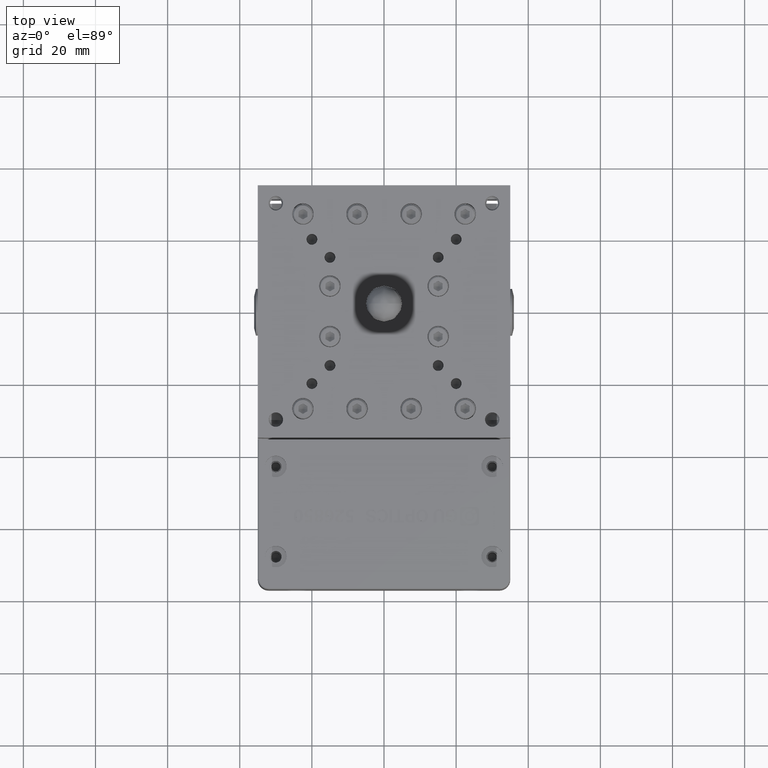
[diagram: clean part render]
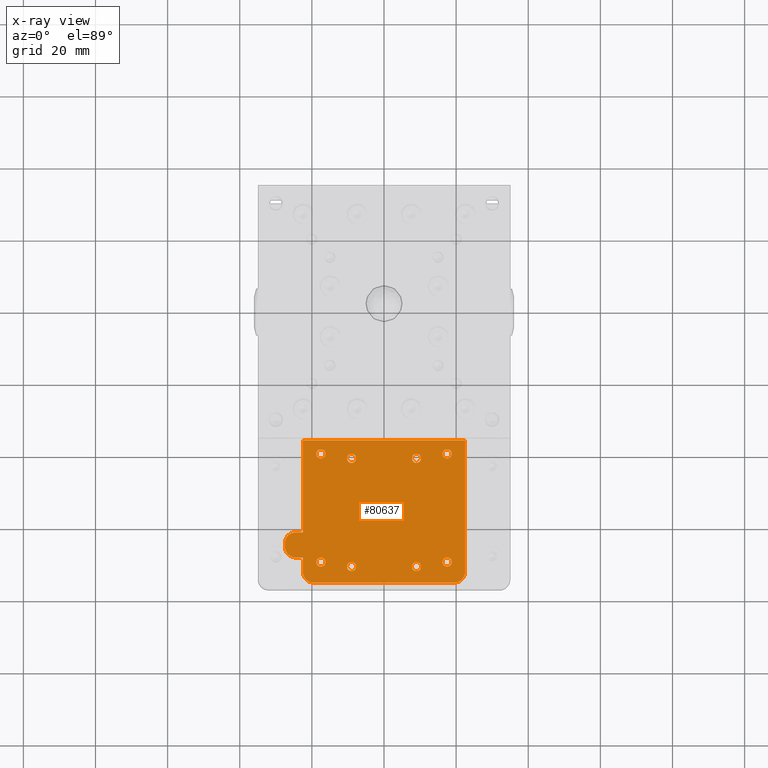
[diagram: x-ray — body ghosted, one internal face saturated and labeled with its STEP entity id]
A machine part, top view, then the same camera in x-ray: the body is ghosted and one INTERNAL B-rep face — a face not visible from any outside direction — is saturated and labeled: STEP entity #80637.
In plain terms, the highlighted planar face has unit normal (0, 0, 1).
Its self-contained STEP definition (entity closure, byte-faithful):
#139 = CARTESIAN_POINT ( 'NONE',  ( 16.28192442463729600, -38.92447732735983800, 10.50000000000000200 ) ) ;
#501 = CARTESIAN_POINT ( 'NONE',  ( -24.49999999999999300, -61.00000000000000000, 10.50000000000000200 ) ) ;
#710 = CARTESIAN_POINT ( 'NONE',  ( -10.21821004268726400, -40.82557837083198400, 10.50000000000000000 ) ) ;
#864 = CARTESIAN_POINT ( 'NONE',  ( 8.999999999999998200, -39.25000000000000000, 10.50000000000000000 ) ) ;
#870 = CARTESIAN_POINT ( 'NONE',  ( 22.50000000000000000, -35.50000000000000700, 10.50000000000000000 ) ) ;
#974 = CARTESIAN_POINT ( 'NONE',  ( 18.75000000000000700, -69.25000000000000000, 10.50000000000000000 ) ) ;
#1214 = CARTESIAN_POINT ( 'NONE',  ( 8.999999999999998200, -71.75000000000001400, 10.50000000000000000 ) ) ;
#1326 = CARTESIAN_POINT ( 'NONE',  ( -27.49999999999999600, -63.60730091830127700, 10.50000000000000000 ) ) ;
#1603 = CARTESIAN_POINT ( 'NONE',  ( -27.42191803000494600, -63.21475634692217900, 10.50000000000000400 ) ) ;
#1797 = VERTEX_POINT ( 'NONE', #62920 ) ;
#1832 = CARTESIAN_POINT ( 'NONE',  ( 18.75000000000000700, -69.25000000000000000, 10.50000000000000000 ) ) ;
#1843 = EDGE_CURVE ( 'NONE', #78081, #6116, #25612, .T. ) ;
#2121 = B_SPLINE_CURVE_WITH_KNOTS ( 'NONE', 3,
 ( #74388, #28733, #41867, #2650, #48430, #9232, #55012, #15843, #61546, #22459 ),
 .UNSPECIFIED., .F., .F.,
 ( 4, 2, 2, 2, 4 ),
 ( 0.5000000000000000000, 0.6250000000000000000, 0.7500000000000000000, 0.8750000000000000000, 1.000000000000000000 ),
 .UNSPECIFIED. ) ;
#2360 = CARTESIAN_POINT ( 'NONE',  ( -17.33443048364986400, -68.00000000000000000, 10.50000000000000000 ) ) ;
#2384 = CARTESIAN_POINT ( 'NONE',  ( 17.50000000000000700, -70.50000000000000000, 10.50000000000000000 ) ) ;
#2650 = CARTESIAN_POINT ( 'NONE',  ( -16.40837674408196300, -69.88118590827002700, 10.50000000000000000 ) ) ;
#2675 = CARTESIAN_POINT ( 'NONE',  ( 10.09162325591540800, -41.13118590827239300, 10.50000000000000000 ) ) ;
#2677 = EDGE_LOOP ( 'NONE', ( #25966, #18318, #9389, #21949 ) ) ;
#2679 = CARTESIAN_POINT ( 'NONE',  ( 18.26698399351589000, -40.25088587628562200, 10.49999999999999600 ) ) ;
#2791 = CARTESIAN_POINT ( 'NONE',  ( -18.75007277319247100, -69.08460639256537700, 10.50000000000000000 ) ) ;
#3144 = VERTEX_POINT ( 'NONE', #501 ) ;
#3172 = ORIENTED_EDGE ( 'NONE', *, *, #4240, .T. ) ;
#3508 = VERTEX_POINT ( 'NONE', #60562 ) ;
#3704 = CARTESIAN_POINT ( 'NONE',  ( 16.40837674408374300, -68.61881409172816900, 10.50000000000000000 ) ) ;
#3739 = CARTESIAN_POINT ( 'NONE',  ( 8.999999999999998200, -41.74999999999999300, 10.50000000000000000 ) ) ;
#4099 = CARTESIAN_POINT ( 'NONE',  ( 16.28178995731221700, -39.57557837083073300, 10.50000000000000000 ) ) ;
#4139 = CARTESIAN_POINT ( 'NONE',  ( 19.50000000000000000, -75.00000000000001400, 10.50000000000000000 ) ) ;
#4240 = EDGE_CURVE ( 'NONE', #20910, #84027, #4785, .T. ) ;
#4277 = CARTESIAN_POINT ( 'NONE',  ( 18.26688107668075400, -38.24921704054898400, 10.50000000000000000 ) ) ;
#4331 = CARTESIAN_POINT ( 'NONE',  ( -10.25000000000000400, -40.50000000000000000, 10.50000000000000000 ) ) ;
#4341 = ORIENTED_EDGE ( 'NONE', *, *, #46247, .T. ) ;
#4343 = CARTESIAN_POINT ( 'NONE',  ( -7.749927226808058100, -40.66539360744050000, 10.50000000000000000 ) ) ;
#4356 = CARTESIAN_POINT ( 'NONE',  ( -17.50000000000000700, -40.50000000000000700, 10.49999999999999800 ) ) ;
#4427 = B_SPLINE_CURVE_WITH_KNOTS ( 'NONE', 3,
 ( #83333, #5060, #50786, #11610, #57349, #18228, #63916, #24787, #70477, #31388 ),
 .UNSPECIFIED., .F., .F.,
 ( 4, 2, 2, 2, 4 ),
 ( 0.5000000000000000000, 0.6250000000000002200, 0.7500000000000002200, 0.8750000000000001100, 1.000000000000000000 ),
 .UNSPECIFIED. ) ;
#4785 = B_SPLINE_CURVE_WITH_KNOTS ( 'NONE', 3,
 ( #30147, #29576, #62695, #75808, #36728, #82386, #43276, #4099, #49824, #10655 ),
 .UNSPECIFIED., .F., .F.,
 ( 4, 2, 2, 2, 4 ),
 ( 0.0000000000000000000, 0.1250000000000000000, 0.2500000000000000000, 0.3750000000000000000, 0.5000000000000000000 ),
 .UNSPECIFIED. ) ;
#4866 = VERTEX_POINT ( 'NONE', #58043 ) ;
#5060 = CARTESIAN_POINT ( 'NONE',  ( 7.749927226808060800, -40.33460639255952200, 10.50000000000000400 ) ) ;
#5161 = B_SPLINE_CURVE_WITH_KNOTS ( 'NONE', 3,
 ( #81107, #2791, #48546, #9367, #55128, #15966, #61681, #22573, #68237, #29124 ),
 .UNSPECIFIED., .F., .F.,
 ( 4, 2, 2, 2, 4 ),
 ( 0.5000000000000000000, 0.6250000000000000000, 0.7500000000000000000, 0.8750000000000000000, 1.000000000000000000 ),
 .UNSPECIFIED. ) ;
#5384 = EDGE_CURVE ( 'NONE', #45369, #1797, #71367, .T. ) ;
#5743 = CARTESIAN_POINT ( 'NONE',  ( -18.75000000000000700, -69.25000000000000000, 10.50000000000000000 ) ) ;
#5958 = CARTESIAN_POINT ( 'NONE',  ( -9.000000000000001800, -71.75000000000001400, 10.50000000000000000 ) ) ;
#5990 = CARTESIAN_POINT ( 'NONE',  ( 16.28178995731222400, -69.57557837083177800, 10.50000000000000000 ) ) ;
#6101 = VERTEX_POINT ( 'NONE', #52532 ) ;
#6116 = VERTEX_POINT ( 'NONE', #19983 ) ;
#6179 = CARTESIAN_POINT ( 'NONE',  ( -18.75000000000000700, -69.25000000000000000, 10.50000000000000000 ) ) ;
#6250 = B_SPLINE_CURVE_WITH_KNOTS ( 'NONE', 3,
 ( #20172, #65869, #26723, #72447, #33320, #79012, #39914, #710, #46458, #7258 ),
 .UNSPECIFIED., .F., .F.,
 ( 4, 2, 2, 2, 4 ),
 ( 0.0000000000000000000, 0.1250000000000000000, 0.2500000000000000000, 0.3750000000000000000, 0.5000000000000000000 ),
 .UNSPECIFIED. ) ;
#6288 = CARTESIAN_POINT ( 'NONE',  ( 7.908511211409565300, -71.13113021008096800, 10.50000000000000000 ) ) ;
#6357 = CARTESIAN_POINT ( 'NONE',  ( -9.000000000000001800, -69.25000000000000000, 10.50000000000000000 ) ) ;
#6359 = CARTESIAN_POINT ( 'NONE',  ( 10.09148878859043900, -39.86886978991736900, 10.50000000000000000 ) ) ;
#6487 = CARTESIAN_POINT ( 'NONE',  ( -26.01085694111269900, -67.62135916506277100, 10.50000000000000000 ) ) ;
#6564 = CARTESIAN_POINT ( 'NONE',  ( -22.50000000000000000, -61.00000000000000000, 10.50000000000000000 ) ) ;
#6633 = B_SPLINE_CURVE_WITH_KNOTS ( 'NONE', 3,
 ( #42620, #10016, #62323, #23212, #68841, #29748, #75433, #36356, #82020, #42903 ),
 .UNSPECIFIED., .F., .F.,
 ( 4, 2, 2, 2, 4 ),
 ( 0.0000000000000000000, 0.1250000000000000000, 0.2500000000000000000, 0.3750000000000000000, 0.5000000000000000000 ),
 .UNSPECIFIED. ) ;
#6727 = CARTESIAN_POINT ( 'NONE',  ( 16.49921704054988300, -38.48311892331887700, 10.50000000000000000 ) ) ;
#7027 = VECTOR ( 'NONE', #77714, 1000.000000000000000 ) ;
#7258 = CARTESIAN_POINT ( 'NONE',  ( -10.25000000000000400, -40.50000000000000000, 10.50000000000000000 ) ) ;
#7316 = ORIENTED_EDGE ( 'NONE', *, *, #39487, .T. ) ;
#7501 = CARTESIAN_POINT ( 'NONE',  ( 10.25000000000000200, -70.50000000000000000, 10.50000000000000000 ) ) ;
#7745 = CARTESIAN_POINT ( 'NONE',  ( -2.499999999999998700, -67.99999999999998600, 10.50000000000000000 ) ) ;
#7976 = CARTESIAN_POINT ( 'NONE',  ( 7.750000000000000000, -70.50000000000000000, 10.50000000000000000 ) ) ;
#8139 = CARTESIAN_POINT ( 'NONE',  ( 17.66556951634909800, -68.00000000000000000, 10.50000000000000000 ) ) ;
#8181 = CARTESIAN_POINT ( 'NONE',  ( -26.89900052719453800, -62.15635984007524700, 10.50000000000000200 ) ) ;
#8260 = CARTESIAN_POINT ( 'NONE',  ( 7.908376744083557100, -69.86881409172863800, 10.50000000000000000 ) ) ;
#8860 = EDGE_CURVE ( 'NONE', #31885, #42323, #31411, .T. ) ;
#8949 = CARTESIAN_POINT ( 'NONE',  ( -16.73311892331710000, -68.24921704055061900, 10.50000000000000000 ) ) ;
#9232 = CARTESIAN_POINT ( 'NONE',  ( -16.73301600648628500, -70.25088587628779600, 10.49999999999999600 ) ) ;
#9252 = B_SPLINE_CURVE_WITH_KNOTS ( 'NONE', 3,
 ( #84366, #58384, #78098, #38999, #84655, #45559, #6359, #52112, #12972, #58659 ),
 .UNSPECIFIED., .F., .F.,
 ( 4, 2, 2, 2, 4 ),
 ( 0.0000000000000000000, 0.1250000000000000000, 0.2500000000000000000, 0.3750000000000000000, 0.5000000000000000000 ),
 .UNSPECIFIED. ) ;
#9258 = CARTESIAN_POINT ( 'NONE',  ( 9.766983993516509700, -41.50088587628526000, 10.49999999999999600 ) ) ;
#9260 = CARTESIAN_POINT ( 'NONE',  ( 17.82540212120111200, -40.46828313854636900, 10.50000000000000000 ) ) ;
#9367 = CARTESIAN_POINT ( 'NONE',  ( -18.59162325591804400, -68.61881409172997300, 10.50000000000000000 ) ) ;
#9389 = ORIENTED_EDGE ( 'NONE', *, *, #31722, .T. ) ;
#9645 = CARTESIAN_POINT ( 'NONE',  ( -16.86881409172493900, -38.15837674408594900, 10.50000000000000000 ) ) ;
#9662 = ORIENTED_EDGE ( 'NONE', *, *, #58561, .T. ) ;
#10016 = CARTESIAN_POINT ( 'NONE',  ( -8.834430483652393900, -39.25000000000000000, 10.50000000000000000 ) ) ;
#10138 = FACE_BOUND ( 'NONE', #40903, .T. ) ;
#10271 = CARTESIAN_POINT ( 'NONE',  ( 16.73301600648553800, -68.24911412371298500, 10.49999999999999600 ) ) ;
#10307 = CARTESIAN_POINT ( 'NONE',  ( 8.834430483655694400, -41.75000000000000000, 10.50000000000000000 ) ) ;
#10348 = CARTESIAN_POINT ( 'NONE',  ( -16.25000000000000000, -39.25000000000000000, 10.50000000000000000 ) ) ;
#10419 = CARTESIAN_POINT ( 'NONE',  ( 22.49999999999998600, -72.39269908169872300, 10.49999999999999600 ) ) ;
#10618 = CARTESIAN_POINT ( 'NONE',  ( -16.24992722680753200, -39.41539360743818300, 10.50000000000000000 ) ) ;
#10655 = CARTESIAN_POINT ( 'NONE',  ( 16.25000000000000000, -39.25000000000000000, 10.50000000000000000 ) ) ;
#10709 = ORIENTED_EDGE ( 'NONE', *, *, #41114, .T. ) ;
#10740 = VERTEX_POINT ( 'NONE', #63047 ) ;
#10829 = CARTESIAN_POINT ( 'NONE',  ( 18.59148878859044300, -38.61886978991800100, 10.50000000000000000 ) ) ;
#10887 = CARTESIAN_POINT ( 'NONE',  ( -10.00078295945086600, -39.73311892331961600, 10.50000000000000000 ) ) ;
#10896 = CARTESIAN_POINT ( 'NONE',  ( -7.908376744085222400, -41.13118590827328100, 10.50000000000000000 ) ) ;
#11498 = CARTESIAN_POINT ( 'NONE',  ( -17.66556951635013900, -70.50000000000001400, 10.50000000000000000 ) ) ;
#11610 = CARTESIAN_POINT ( 'NONE',  ( 7.908376744085033200, -39.86881409172714500, 10.49999999999999800 ) ) ;
#11759 = ORIENTED_EDGE ( 'NONE', *, *, #1843, .T. ) ;
#11879 = VERTEX_POINT ( 'NONE', #56582 ) ;
#12134 = CARTESIAN_POINT ( 'NONE',  ( -19.49999999999999600, -75.00000000000001400, 10.50000000000000000 ) ) ;
#12193 = FACE_BOUND ( 'NONE', #17621, .T. ) ;
#12573 = CARTESIAN_POINT ( 'NONE',  ( 16.25000000000000400, -69.25000000000000000, 10.50000000000000000 ) ) ;
#12631 = EDGE_CURVE ( 'NONE', #18331, #20910, #17688, .T. ) ;
#12768 = DIRECTION ( 'NONE',  ( 1.000000000000000000, -0.0000000000000000000, -0.0000000000000000000 ) ) ;
#12823 = CARTESIAN_POINT ( 'NONE',  ( -18.13118590827329500, -40.34162325591477600, 10.50000000000000000 ) ) ;
#12908 = CARTESIAN_POINT ( 'NONE',  ( 7.750072773191941000, -70.66539360743841800, 10.50000000000000000 ) ) ;
#12951 = CARTESIAN_POINT ( 'NONE',  ( 18.75000000000000700, -69.25000000000000000, 10.50000000000000000 ) ) ;
#12972 = CARTESIAN_POINT ( 'NONE',  ( 10.24992722680806200, -40.33460639256013300, 10.50000000000000000 ) ) ;
#12974 = VERTEX_POINT ( 'NONE', #12951 ) ;
#13095 = CARTESIAN_POINT ( 'NONE',  ( -26.89900052719454100, -66.84364015992473200, 10.50000000000000400 ) ) ;
#13330 = CARTESIAN_POINT ( 'NONE',  ( 16.86869354028889800, -38.15858430726814300, 10.50000000000000000 ) ) ;
#14241 = VERTEX_POINT ( 'NONE', #20914 ) ;
#14410 = CARTESIAN_POINT ( 'NONE',  ( -16.25000000000000400, -69.25000000000000000, 10.50000000000000000 ) ) ;
#14748 = B_SPLINE_CURVE_WITH_KNOTS ( 'NONE', 3,
 ( #45407, #38554, #51960, #12823, #58517, #19381, #65104, #25955, #71669, #32565 ),
 .UNSPECIFIED., .F., .F.,
 ( 4, 2, 2, 2, 4 ),
 ( 0.0000000000000000000, 0.1250000000000000000, 0.2500000000000000000, 0.3750000000000000000, 0.5000000000000000000 ),
 .UNSPECIFIED. ) ;
#14783 = CARTESIAN_POINT ( 'NONE',  ( -26.01085694111269600, -61.37864083493723700, 10.50000000000000200 ) ) ;
#14861 = CARTESIAN_POINT ( 'NONE',  ( 8.233016006485273800, -69.49911412371299900, 10.49999999999999600 ) ) ;
#15495 = CARTESIAN_POINT ( 'NONE',  ( -8.834430483650905300, -69.25000000000000000, 10.50000000000000000 ) ) ;
#15553 = AXIS2_PLACEMENT_3D ( 'NONE', #73986, #34877, #80563 ) ;
#15556 = CARTESIAN_POINT ( 'NONE',  ( -16.40851121140903500, -68.61886978992282600, 10.50000000000000000 ) ) ;
#15843 = CARTESIAN_POINT ( 'NONE',  ( -17.17459787880194700, -70.46828313854636900, 10.50000000000000000 ) ) ;
#15861 = CARTESIAN_POINT ( 'NONE',  ( 9.325402121201376500, -41.71828313854638300, 10.50000000000000000 ) ) ;
#15862 = CARTESIAN_POINT ( 'NONE',  ( 17.50000000000000700, -40.50000000000000700, 10.50000000000000000 ) ) ;
#15925 = CARTESIAN_POINT ( 'NONE',  ( -10.25000000000000400, -70.50000000000000000, 10.50000000000000000 ) ) ;
#15966 = CARTESIAN_POINT ( 'NONE',  ( -18.26698399351372600, -68.24911412371224600, 10.49999999999999600 ) ) ;
#16237 = VERTEX_POINT ( 'NONE', #15925 ) ;
#16239 = CARTESIAN_POINT ( 'NONE',  ( -16.49911412371401600, -38.48301600648554200, 10.49999999999999600 ) ) ;
#16284 = DIRECTION ( 'NONE',  ( -0.0000000000000000000, 1.000000000000000000, -0.0000000000000000000 ) ) ;
#16314 = LINE ( 'NONE', #83456, #51086 ) ;
#16501 = EDGE_CURVE ( 'NONE', #84027, #4866, #63053, .T. ) ;
#16735 = ORIENTED_EDGE ( 'NONE', *, *, #27849, .F. ) ;
#16819 = ORIENTED_EDGE ( 'NONE', *, *, #25615, .T. ) ;
#16865 = CARTESIAN_POINT ( 'NONE',  ( 17.17459787880089600, -68.03171686145363100, 10.50000000000000000 ) ) ;
#16942 = CARTESIAN_POINT ( 'NONE',  ( -17.50000000000000700, -70.50000000000000000, 10.49999999999999800 ) ) ;
#17154 = ORIENTED_EDGE ( 'NONE', *, *, #82722, .T. ) ;
#17325 = VECTOR ( 'NONE', #76815, 1000.000000000000000 ) ;
#17447 = CARTESIAN_POINT ( 'NONE',  ( 18.74992722680807200, -39.08460639256054500, 10.50000000000000000 ) ) ;
#17481 = VERTEX_POINT ( 'NONE', #31460 ) ;
#17494 = CARTESIAN_POINT ( 'NONE',  ( -9.631306459712131800, -39.40858430726814300, 10.50000000000000000 ) ) ;
#17503 = CARTESIAN_POINT ( 'NONE',  ( -8.233016006483751400, -41.50088587628526000, 10.49999999999999600 ) ) ;
#17621 = EDGE_LOOP ( 'NONE', ( #4341, #58058, #80163, #61216 ) ) ;
#17688 = B_SPLINE_CURVE_WITH_KNOTS ( 'NONE', 3,
 ( #67851, #74408, #35309, #81006, #41891, #2679, #48448, #9260, #55032, #15862 ),
 .UNSPECIFIED., .F., .F.,
 ( 4, 2, 2, 2, 4 ),
 ( 0.5000000000000000000, 0.6250000000000000000, 0.7500000000000000000, 0.8750000000000000000, 1.000000000000000000 ),
 .UNSPECIFIED. ) ;
#18222 = CARTESIAN_POINT ( 'NONE',  ( 17.50000000000000700, -68.00000000000000000, 10.50000000000000000 ) ) ;
#18228 = CARTESIAN_POINT ( 'NONE',  ( 8.233016006483492100, -39.49911412371474700, 10.49999999999999800 ) ) ;
#18318 = ORIENTED_EDGE ( 'NONE', *, *, #69325, .T. ) ;
#18331 = VERTEX_POINT ( 'NONE', #29125 ) ;
#18493 = CARTESIAN_POINT ( 'NONE',  ( -18.59162325591551500, -38.61881409172743700, 10.50000000000000000 ) ) ;
#18548 = VERTEX_POINT ( 'NONE', #50508 ) ;
#18950 = ORIENTED_EDGE ( 'NONE', *, *, #26549, .T. ) ;
#19138 = CARTESIAN_POINT ( 'NONE',  ( -9.631185908276124900, -71.59162325591296400, 10.50000000000000000 ) ) ;
#19381 = CARTESIAN_POINT ( 'NONE',  ( -18.50088587628526000, -40.01698399351624100, 10.49999999999999600 ) ) ;
#19577 = ORIENTED_EDGE ( 'NONE', *, *, #36837, .T. ) ;
#19637 = CARTESIAN_POINT ( 'NONE',  ( 9.631185908274783700, -69.40837674408646800, 10.50000000000000000 ) ) ;
#19662 = CARTESIAN_POINT ( 'NONE',  ( -27.42191803000494900, -65.78524365307784200, 10.50000000000000400 ) ) ;
#19906 = CARTESIAN_POINT ( 'NONE',  ( 17.33404930895049700, -37.99999999999999300, 10.50000000000000000 ) ) ;
#19983 = CARTESIAN_POINT ( 'NONE',  ( -9.000000000000000000, -39.25000000000000000, 10.50000000000000000 ) ) ;
#20172 = CARTESIAN_POINT ( 'NONE',  ( -9.000000000000001800, -41.74999999999999300, 10.50000000000000000 ) ) ;
#20415 = CARTESIAN_POINT ( 'NONE',  ( 10.25007277319194200, -70.66539360743779200, 10.50000000000000000 ) ) ;
#20554 = EDGE_CURVE ( 'NONE', #74183, #11879, #79185, .T. ) ;
#20707 = CARTESIAN_POINT ( 'NONE',  ( 10.21807557536133400, -70.82552267264182400, 10.50000000000000200 ) ) ;
#20910 = VERTEX_POINT ( 'NONE', #81002 ) ;
#20914 = CARTESIAN_POINT ( 'NONE',  ( 22.49999999999999300, -71.99999999624250800, 10.50000000000000000 ) ) ;
#20932 = LINE ( 'NONE', #32229, #36256 ) ;
#20963 = VERTEX_POINT ( 'NONE', #49254 ) ;
#21104 = CARTESIAN_POINT ( 'NONE',  ( -27.49999999999999600, -64.00000000000000000, 10.50000000000000200 ) ) ;
#21178 = CARTESIAN_POINT ( 'NONE',  ( 7.749927226808060800, -70.33460639256158200, 10.50000000000000000 ) ) ;
#21339 = CARTESIAN_POINT ( 'NONE',  ( 17.82552267263750800, -68.03192442463515000, 10.50000000000000200 ) ) ;
#21398 = CARTESIAN_POINT ( 'NONE',  ( -24.89269908169872300, -61.00000000000000000, 10.50000000000000200 ) ) ;
#21470 = CARTESIAN_POINT ( 'NONE',  ( 8.674597878801163700, -69.28171686145363100, 10.50000000000000000 ) ) ;
#21909 = CARTESIAN_POINT ( 'NONE',  ( 18.71807557536197200, -69.57552267264094300, 10.50000000000000200 ) ) ;
#21949 = ORIENTED_EDGE ( 'NONE', *, *, #26012, .T. ) ;
#22094 = CARTESIAN_POINT ( 'NONE',  ( -8.368814091725662200, -69.40837674408626900, 10.50000000000000000 ) ) ;
#22153 = CARTESIAN_POINT ( 'NONE',  ( -16.25007277319246400, -69.08460639256537700, 10.50000000000000000 ) ) ;
#22192 = CARTESIAN_POINT ( 'NONE',  ( 10.25007277319194400, -40.66539360743987400, 10.50000000000000000 ) ) ;
#22459 = CARTESIAN_POINT ( 'NONE',  ( -17.50000000000000700, -70.50000000000000000, 10.49999999999999800 ) ) ;
#22483 = CARTESIAN_POINT ( 'NONE',  ( 8.999999999999998200, -41.74999999999999300, 10.50000000000000000 ) ) ;
#22573 = CARTESIAN_POINT ( 'NONE',  ( -17.82540212119806700, -68.03171686145363100, 10.50000000000000000 ) ) ;
#22666 = CARTESIAN_POINT ( 'NONE',  ( -7.908376744083746200, -71.13118590827184600, 10.50000000000000000 ) ) ;
#22719 = VERTEX_POINT ( 'NONE', #78388 ) ;
#22752 = CARTESIAN_POINT ( 'NONE',  ( -21.01085694111268500, -74.62135916506275600, 10.49999999999999500 ) ) ;
#22863 = CARTESIAN_POINT ( 'NONE',  ( -16.28178995731273900, -38.92442162916800900, 10.50000000000000000 ) ) ;
#23212 = CARTESIAN_POINT ( 'NONE',  ( -8.368814091726717300, -39.40837674408521000, 10.50000000000000000 ) ) ;
#23484 = CARTESIAN_POINT ( 'NONE',  ( 17.50000000000000700, -68.00000000000000000, 10.50000000000000000 ) ) ;
#23518 = CARTESIAN_POINT ( 'NONE',  ( 8.368814091728609100, -41.59162325591692900, 10.50000000000000000 ) ) ;
#23615 = CARTESIAN_POINT ( 'NONE',  ( 22.42191803000493900, -72.78524365307785600, 10.49999999999999800 ) ) ;
#23796 = CARTESIAN_POINT ( 'NONE',  ( -10.25007277319246900, -40.33460639256077200, 10.50000000000000000 ) ) ;
#23825 = CARTESIAN_POINT ( 'NONE',  ( -16.28192442463729600, -39.57552267264016900, 10.50000000000000200 ) ) ;
#24096 = CARTESIAN_POINT ( 'NONE',  ( -9.165950691048463400, -39.25000000000000000, 10.50000000000000000 ) ) ;
#24103 = CARTESIAN_POINT ( 'NONE',  ( -8.674597878798367700, -41.71828313854638300, 10.50000000000000000 ) ) ;
#24579 = B_SPLINE_CURVE_WITH_KNOTS ( 'NONE', 3,
 ( #58016, #51157, #32032, #77715, #38618, #84265, #45155, #5990, #51721, #12573 ),
 .UNSPECIFIED., .F., .F.,
 ( 4, 2, 2, 2, 4 ),
 ( 0.0000000000000000000, 0.1250000000000000000, 0.2500000000000000000, 0.3750000000000000000, 0.5000000000000000000 ),
 .UNSPECIFIED. ) ;
#24732 = VECTOR ( 'NONE', #41783, 1000.000000000000000 ) ;
#24787 = CARTESIAN_POINT ( 'NONE',  ( 8.674597878798632400, -39.28171686145364600, 10.50000000000000400 ) ) ;
#25061 = CARTESIAN_POINT ( 'NONE',  ( -18.26698399351625600, -38.24911412371475400, 10.49999999999999600 ) ) ;
#25217 = CARTESIAN_POINT ( 'NONE',  ( -17.82552267263586600, -70.46807557536598700, 10.50000000000000200 ) ) ;
#25246 = ORIENTED_EDGE ( 'NONE', *, *, #12631, .T. ) ;
#25484 = FACE_OUTER_BOUND ( 'NONE', #68222, .T. ) ;
#25512 = EDGE_CURVE ( 'NONE', #70668, #14241, #40098, .T. ) ;
#25612 = B_SPLINE_CURVE_WITH_KNOTS ( 'NONE', 3,
 ( #4331, #23796, #30387, #50063, #10887, #56633, #17494, #63205, #24096, #69733 ),
 .UNSPECIFIED., .F., .F.,
 ( 4, 2, 2, 2, 4 ),
 ( 0.5000000000000000000, 0.6250000000000000000, 0.7500000000000000000, 0.8750000000000000000, 1.000000000000000000 ),
 .UNSPECIFIED. ) ;
#25615 = EDGE_CURVE ( 'NONE', #37838, #47762, #83425, .T. ) ;
#25633 = EDGE_CURVE ( 'NONE', #4866, #18331, #70874, .T. ) ;
#25652 = ORIENTED_EDGE ( 'NONE', *, *, #78754, .T. ) ;
#25696 = CARTESIAN_POINT ( 'NONE',  ( -10.00088587628524400, -71.26698399351524000, 10.49999999999999600 ) ) ;
#25746 = CARTESIAN_POINT ( 'NONE',  ( 8.999999999999998200, -71.75000000000001400, 10.50000000000000000 ) ) ;
#25816 = CARTESIAN_POINT ( 'NONE',  ( -10.21807557536196300, -70.17447732735909900, 10.50000000000000200 ) ) ;
#25942 = CARTESIAN_POINT ( 'NONE',  ( -24.89269908169871900, -68.00000000000002800, 10.50000000000000000 ) ) ;
#25955 = CARTESIAN_POINT ( 'NONE',  ( -18.71821004268726800, -39.57557837083198400, 10.50000000000000000 ) ) ;
#25966 = ORIENTED_EDGE ( 'NONE', *, *, #8860, .T. ) ;
#26012 = EDGE_CURVE ( 'NONE', #65099, #31885, #5161, .T. ) ;
#26203 = CARTESIAN_POINT ( 'NONE',  ( 10.00088587628513700, -69.73301600648392200, 10.49999999999999600 ) ) ;
#26223 = CARTESIAN_POINT ( 'NONE',  ( -27.50000000000000000, -65.00000000000000000, 10.50000000000000200 ) ) ;
#26319 = VECTOR ( 'NONE', #69652, 1000.000000000000000 ) ;
#26421 = ORIENTED_EDGE ( 'NONE', *, *, #41597, .T. ) ;
#26549 = EDGE_CURVE ( 'NONE', #3508, #32983, #64295, .T. ) ;
#26723 = CARTESIAN_POINT ( 'NONE',  ( -9.325522672640184800, -41.71807557536165900, 10.50000000000000200 ) ) ;
#27294 = CARTESIAN_POINT ( 'NONE',  ( 10.00078295945164300, -71.26688107667938300, 10.50000000000000000 ) ) ;
#27599 = FACE_BOUND ( 'NONE', #40227, .T. ) ;
#27745 = VERTEX_POINT ( 'NONE', #83075 ) ;
#27849 = EDGE_CURVE ( 'NONE', #3144, #80480, #20932, .T. ) ;
#27908 = CARTESIAN_POINT ( 'NONE',  ( 18.26688107668150400, -68.24921704054975200, 10.50000000000000000 ) ) ;
#27916 = B_SPLINE_CURVE_WITH_KNOTS ( 'NONE', 3,
 ( #5958, #51408, #58260, #19138, #64842, #25696, #71416, #32308, #77979, #38869 ),
 .UNSPECIFIED., .F., .F.,
 ( 4, 2, 2, 2, 4 ),
 ( 0.0000000000000000000, 0.1250000000000000000, 0.2500000000000000000, 0.3750000000000000000, 0.5000000000000000000 ),
 .UNSPECIFIED. ) ;
#28044 = CARTESIAN_POINT ( 'NONE',  ( 8.999999999999998200, -69.25000000000000000, 10.50000000000000000 ) ) ;
#28161 = CARTESIAN_POINT ( 'NONE',  ( -17.50000000000000700, -68.00000000000000000, 10.49999999999999800 ) ) ;
#28400 = LINE ( 'NONE', #44001, #26319 ) ;
#28474 = CARTESIAN_POINT ( 'NONE',  ( 18.50078295945190400, -70.01688107667936800, 10.50000000000000000 ) ) ;
#28483 = CARTESIAN_POINT ( 'NONE',  ( 10.25000000000000200, -40.50000000000000000, 10.50000000000000000 ) ) ;
#28658 = CARTESIAN_POINT ( 'NONE',  ( -7.999114123715494400, -69.73301600648299800, 10.49999999999999600 ) ) ;
#28733 = CARTESIAN_POINT ( 'NONE',  ( -16.24992722680754300, -69.41539360743465200, 10.50000000000000000 ) ) ;
#28946 = CARTESIAN_POINT ( 'NONE',  ( -7.750000000000000000, -70.50000000000000000, 10.50000000000000000 ) ) ;
#29011 = B_SPLINE_CURVE_WITH_KNOTS ( 'NONE', 3,
 ( #28946, #35525, #61781, #22666, #68329, #29215, #74880, #35800, #81476, #42355 ),
 .UNSPECIFIED., .F., .F.,
 ( 4, 2, 2, 2, 4 ),
 ( 0.5000000000000000000, 0.6250000000000002200, 0.7500000000000001100, 0.8750000000000000000, 1.000000000000000000 ),
 .UNSPECIFIED. ) ;
#29124 = CARTESIAN_POINT ( 'NONE',  ( -17.50000000000000700, -68.00000000000000000, 10.49999999999999800 ) ) ;
#29125 = CARTESIAN_POINT ( 'NONE',  ( 18.75000000000001100, -39.25000000000000000, 10.50000000000000000 ) ) ;
#29215 = CARTESIAN_POINT ( 'NONE',  ( -8.233016006485536700, -71.50088587628701500, 10.49999999999999800 ) ) ;
#29298 = CARTESIAN_POINT ( 'NONE',  ( -21.89900052719454100, -73.84364015992474600, 10.49999999999999600 ) ) ;
#29379 = LINE ( 'NONE', #42864, #64117 ) ;
#29399 = CARTESIAN_POINT ( 'NONE',  ( -16.25000000000000000, -39.25000000000000000, 10.50000000000000000 ) ) ;
#29576 = CARTESIAN_POINT ( 'NONE',  ( 17.33443048365343500, -40.49999999999999300, 10.50000000000000000 ) ) ;
#29748 = CARTESIAN_POINT ( 'NONE',  ( -7.999114123714757200, -39.73301600648374400, 10.49999999999999600 ) ) ;
#30073 = CARTESIAN_POINT ( 'NONE',  ( 7.999114123714571500, -41.26698399351580100, 10.49999999999999600 ) ) ;
#30147 = CARTESIAN_POINT ( 'NONE',  ( 17.50000000000000700, -40.50000000000000700, 10.50000000000000000 ) ) ;
#30191 = CARTESIAN_POINT ( 'NONE',  ( 21.89900052719453400, -73.84364015992477400, 10.49999999999999800 ) ) ;
#30333 = CARTESIAN_POINT ( 'NONE',  ( 17.50000000000000400, -38.00000000000000000, 10.50000000000000000 ) ) ;
#30387 = CARTESIAN_POINT ( 'NONE',  ( -10.21807557536344500, -40.17447732736057700, 10.50000000000000200 ) ) ;
#30408 = CARTESIAN_POINT ( 'NONE',  ( -16.49921704054913700, -40.01688107668039900, 10.50000000000000000 ) ) ;
#30547 = CARTESIAN_POINT ( 'NONE',  ( -18.75000000000001100, -39.25000000000000000, 10.50000000000000000 ) ) ;
#30680 = CARTESIAN_POINT ( 'NONE',  ( -9.000000000000001800, -41.74999999999999300, 10.50000000000000000 ) ) ;
#31202 = ORIENTED_EDGE ( 'NONE', *, *, #68569, .T. ) ;
#31388 = CARTESIAN_POINT ( 'NONE',  ( 8.999999999999998200, -39.25000000000000000, 10.50000000000000000 ) ) ;
#31389 = CARTESIAN_POINT ( 'NONE',  ( -18.75007277319247500, -39.08460639256179500, 10.50000000000000000 ) ) ;
#31411 = B_SPLINE_CURVE_WITH_KNOTS ( 'NONE', 3,
 ( #28161, #2360, #41579, #48137, #8949, #54695, #15556, #61263, #22153, #67808 ),
 .UNSPECIFIED., .F., .F.,
 ( 4, 2, 2, 2, 4 ),
 ( 0.0000000000000000000, 0.1250000000000000000, 0.2500000000000000000, 0.3750000000000000000, 0.5000000000000000000 ),
 .UNSPECIFIED. ) ;
#31460 = CARTESIAN_POINT ( 'NONE',  ( 10.25000000000000200, -70.50000000000000000, 10.50000000000000000 ) ) ;
#31654 = CARTESIAN_POINT ( 'NONE',  ( -17.82540212120163800, -38.03171686145362400, 10.50000000000000000 ) ) ;
#31722 = EDGE_CURVE ( 'NONE', #20963, #65099, #68408, .T. ) ;
#31807 = CARTESIAN_POINT ( 'NONE',  ( -18.26688107668291000, -70.25078295944939600, 10.50000000000000000 ) ) ;
#31849 = VERTEX_POINT ( 'NONE', #32950 ) ;
#31885 = VERTEX_POINT ( 'NONE', #72351 ) ;
#32029 = CARTESIAN_POINT ( 'NONE',  ( -27.50000000000000400, -64.50000000000000000, 10.50000000000000200 ) ) ;
#32032 = CARTESIAN_POINT ( 'NONE',  ( 17.17447732736288700, -70.46807557536523300, 10.50000000000000200 ) ) ;
#32053 = ORIENTED_EDGE ( 'NONE', *, *, #25512, .F. ) ;
#32229 = CARTESIAN_POINT ( 'NONE',  ( -2.500000000000000400, -61.00000000000000000, 10.50000000000000000 ) ) ;
#32308 = CARTESIAN_POINT ( 'NONE',  ( -10.21821004268726400, -70.82557837083307100, 10.50000000000000000 ) ) ;
#32436 = CARTESIAN_POINT ( 'NONE',  ( -10.00078295945264300, -69.73311892332139900, 10.50000000000000000 ) ) ;
#32456 = EDGE_CURVE ( 'NONE', #40487, #74183, #14748, .T. ) ;
#32565 = CARTESIAN_POINT ( 'NONE',  ( -18.75000000000001100, -39.25000000000000000, 10.50000000000000000 ) ) ;
#32794 = CARTESIAN_POINT ( 'NONE',  ( 16.25000000000000000, -39.25000000000000000, 10.50000000000000000 ) ) ;
#32811 = CARTESIAN_POINT ( 'NONE',  ( 10.21821004268778500, -70.17442162916889000, 10.50000000000000000 ) ) ;
#32950 = CARTESIAN_POINT ( 'NONE',  ( -22.49999999999999300, -68.00000000000000000, 10.50000000000000000 ) ) ;
#32983 = VERTEX_POINT ( 'NONE', #71861 ) ;
#33320 = CARTESIAN_POINT ( 'NONE',  ( -9.766881076680382600, -41.50078295945189700, 10.50000000000000000 ) ) ;
#33409 = ORIENTED_EDGE ( 'NONE', *, *, #61359, .T. ) ;
#33502 = CARTESIAN_POINT ( 'NONE',  ( -9.000000000000001800, -69.25000000000000000, 10.50000000000000000 ) ) ;
#33508 = ORIENTED_EDGE ( 'NONE', *, *, #51387, .T. ) ;
#33803 = ORIENTED_EDGE ( 'NONE', *, *, #50068, .F. ) ;
#33848 = CARTESIAN_POINT ( 'NONE',  ( 9.631306459713883300, -71.59141569273182900, 10.50000000000000000 ) ) ;
#34017 = CARTESIAN_POINT ( 'NONE',  ( -10.25000000000000400, -40.50000000000000000, 10.50000000000000000 ) ) ;
#34325 = VERTEX_POINT ( 'NONE', #12134 ) ;
#34470 = CARTESIAN_POINT ( 'NONE',  ( 18.59148878859043900, -68.61886978991906000, 10.50000000000000000 ) ) ;
#34490 = ORIENTED_EDGE ( 'NONE', *, *, #71733, .T. ) ;
#34689 = EDGE_CURVE ( 'NONE', #55333, #40676, #58912, .T. ) ;
#34700 = EDGE_LOOP ( 'NONE', ( #7316, #73136, #40717, #72126 ) ) ;
#34877 = DIRECTION ( 'NONE',  ( 0.0000000000000000000, 0.0000000000000000000, 1.000000000000000000 ) ) ;
#35020 = CARTESIAN_POINT ( 'NONE',  ( 18.13130645971362800, -70.34141569273182900, 10.50000000000000000 ) ) ;
#35220 = CARTESIAN_POINT ( 'NONE',  ( -7.781789957312215100, -70.17442162916825100, 10.50000000000000000 ) ) ;
#35254 = ORIENTED_EDGE ( 'NONE', *, *, #62601, .T. ) ;
#35309 = CARTESIAN_POINT ( 'NONE',  ( 18.71807557536271100, -39.57552267264017600, 10.50000000000000200 ) ) ;
#35525 = CARTESIAN_POINT ( 'NONE',  ( -7.749927226808059900, -70.66539360743841800, 10.49999999999999800 ) ) ;
#35800 = CARTESIAN_POINT ( 'NONE',  ( -8.674597878800895500, -71.71828313854638300, 10.49999999999999800 ) ) ;
#35888 = CARTESIAN_POINT ( 'NONE',  ( -22.42191803000494600, -72.78524365307787000, 10.50000000000000000 ) ) ;
#36256 = VECTOR ( 'NONE', #12768, 1000.000000000000000 ) ;
#36336 = CARTESIAN_POINT ( 'NONE',  ( 16.24992722680806200, -69.08460639256159700, 10.50000000000000000 ) ) ;
#36356 = CARTESIAN_POINT ( 'NONE',  ( -7.781789957312216000, -40.17442162916928100, 10.50000000000000000 ) ) ;
#36654 = CARTESIAN_POINT ( 'NONE',  ( 7.781789957312216000, -40.82557837083071900, 10.50000000000000000 ) ) ;
#36728 = CARTESIAN_POINT ( 'NONE',  ( 16.73311892331887700, -40.25078295945012700, 10.50000000000000000 ) ) ;
#36768 = CARTESIAN_POINT ( 'NONE',  ( 21.01085694111269600, -74.62135916506277100, 10.49999999999999800 ) ) ;
#36837 = EDGE_CURVE ( 'NONE', #22719, #80480, #16314, .T. ) ;
#36982 = CARTESIAN_POINT ( 'NONE',  ( -16.86869354028786100, -40.34141569273185000, 10.50000000000000000 ) ) ;
#37791 = DIRECTION ( 'NONE',  ( -0.0000000000000000000, -1.000000000000000000, -0.0000000000000000000 ) ) ;
#37838 = VERTEX_POINT ( 'NONE', #59270 ) ;
#37848 = B_SPLINE_CURVE_WITH_KNOTS ( 'NONE', 3,
 ( #53896, #8139, #21339, #67001, #27908, #73579, #34470, #80153, #41041, #1832 ),
 .UNSPECIFIED., .F., .F.,
 ( 4, 2, 2, 2, 4 ),
 ( 0.0000000000000000000, 0.1250000000000000000, 0.2500000000000000000, 0.3750000000000000000, 0.5000000000000000000 ),
 .UNSPECIFIED. ) ;
#37993 = EDGE_LOOP ( 'NONE', ( #34490, #18950, #10709, #35254 ) ) ;
#38134 = CARTESIAN_POINT ( 'NONE',  ( -10.25000000000000400, -70.50000000000000000, 10.50000000000000000 ) ) ;
#38216 = CARTESIAN_POINT ( 'NONE',  ( -17.50000000000000700, -38.00000000000000000, 10.50000000000000000 ) ) ;
#38292 = EDGE_CURVE ( 'NONE', #6101, #62352, #78069, .T. ) ;
#38367 = CARTESIAN_POINT ( 'NONE',  ( -18.59148878859097600, -69.88113021007718800, 10.50000000000000000 ) ) ;
#38554 = CARTESIAN_POINT ( 'NONE',  ( -17.66556951634761700, -40.50000000000001400, 10.50000000000000000 ) ) ;
#38618 = CARTESIAN_POINT ( 'NONE',  ( 16.73311892331851100, -70.25078295945027700, 10.50000000000000000 ) ) ;
#38869 = CARTESIAN_POINT ( 'NONE',  ( -10.25000000000000400, -70.50000000000000000, 10.50000000000000000 ) ) ;
#38919 = CARTESIAN_POINT ( 'NONE',  ( 8.368814091725031500, -71.59162325591336200, 10.50000000000000000 ) ) ;
#38996 = CARTESIAN_POINT ( 'NONE',  ( -9.631306459714664900, -69.40858430726818500, 10.50000000000000000 ) ) ;
#38999 = CARTESIAN_POINT ( 'NONE',  ( 9.631185908273177900, -39.40837674408485500, 10.50000000000000000 ) ) ;
#39097 = CARTESIAN_POINT ( 'NONE',  ( 8.999999999999998200, -69.25000000000000000, 10.50000000000000000 ) ) ;
#39117 = CARTESIAN_POINT ( 'NONE',  ( -7.750000000000000000, -70.50000000000000000, 10.50000000000000000 ) ) ;
#39385 = CARTESIAN_POINT ( 'NONE',  ( 10.25000000000000200, -70.50000000000000000, 10.50000000000000000 ) ) ;
#39487 = EDGE_CURVE ( 'NONE', #11879, #67881, #67764, .T. ) ;
#39763 = B_SPLINE_CURVE_WITH_KNOTS ( 'NONE', 3,
 ( #974, #46721, #21909, #67557, #28474, #74148, #35020, #80707, #41611, #2384 ),
 .UNSPECIFIED., .F., .F.,
 ( 4, 2, 2, 2, 4 ),
 ( 0.5000000000000000000, 0.6250000000000000000, 0.7500000000000000000, 0.8750000000000000000, 1.000000000000000000 ),
 .UNSPECIFIED. ) ;
#39914 = CARTESIAN_POINT ( 'NONE',  ( -10.09148878859095800, -41.13113021008074800, 10.50000000000000000 ) ) ;
#40098 = LINE ( 'NONE', #54354, #24732 ) ;
#40227 = EDGE_LOOP ( 'NONE', ( #44953, #53460, #31202, #68195 ) ) ;
#40308 = ORIENTED_EDGE ( 'NONE', *, *, #62208, .F. ) ;
#40437 = CARTESIAN_POINT ( 'NONE',  ( 9.165950691046724300, -71.75000000000001400, 10.50000000000000000 ) ) ;
#40487 = VERTEX_POINT ( 'NONE', #81211 ) ;
#40676 = VERTEX_POINT ( 'NONE', #83451 ) ;
#40717 = ORIENTED_EDGE ( 'NONE', *, *, #32456, .T. ) ;
#40903 = EDGE_LOOP ( 'NONE', ( #17154, #79969, #33508, #11759 ) ) ;
#41041 = CARTESIAN_POINT ( 'NONE',  ( 18.74992722680806900, -69.08460639256159700, 10.50000000000000000 ) ) ;
#41114 = EDGE_CURVE ( 'NONE', #32983, #66124, #66345, .T. ) ;
#41579 = CARTESIAN_POINT ( 'NONE',  ( -17.17447732736415100, -68.03192442463404200, 10.50000000000000200 ) ) ;
#41597 = EDGE_CURVE ( 'NONE', #70668, #22719, #28400, .T. ) ;
#41611 = CARTESIAN_POINT ( 'NONE',  ( 17.66595069104699400, -70.50000000000000000, 10.50000000000000000 ) ) ;
#41783 = DIRECTION ( 'NONE',  ( 0.0000000000000000000, -1.000000000000000000, 0.0000000000000000000 ) ) ;
#41803 = CARTESIAN_POINT ( 'NONE',  ( -7.750000000000000000, -70.50000000000000000, 10.50000000000000000 ) ) ;
#41867 = CARTESIAN_POINT ( 'NONE',  ( -16.28192442463982200, -69.57552267264273400, 10.50000000000000200 ) ) ;
#41889 = CARTESIAN_POINT ( 'NONE',  ( 10.21807557536281400, -40.82552267264032500, 10.50000000000000200 ) ) ;
#41891 = CARTESIAN_POINT ( 'NONE',  ( 18.50078295945049700, -40.01688107668076800, 10.50000000000000000 ) ) ;
#42269 = CARTESIAN_POINT ( 'NONE',  ( -17.50000000000000700, -38.00000000000000000, 10.50000000000000000 ) ) ;
#42323 = VERTEX_POINT ( 'NONE', #14410 ) ;
#42355 = CARTESIAN_POINT ( 'NONE',  ( -9.000000000000001800, -71.75000000000001400, 10.50000000000000000 ) ) ;
#42620 = CARTESIAN_POINT ( 'NONE',  ( -9.000000000000000000, -39.25000000000000000, 10.50000000000000000 ) ) ;
#42698 = CARTESIAN_POINT ( 'NONE',  ( -18.75000000000001100, -39.25000000000000000, 10.50000000000000000 ) ) ;
#42856 = VERTEX_POINT ( 'NONE', #864 ) ;
#42864 = CARTESIAN_POINT ( 'NONE',  ( -22.49999999999999600, -55.25000000000000700, 10.50000000000000000 ) ) ;
#42893 = FACE_BOUND ( 'NONE', #51715, .T. ) ;
#42903 = CARTESIAN_POINT ( 'NONE',  ( -7.750000000000000000, -40.50000000000000000, 10.50000000000000000 ) ) ;
#43210 = CARTESIAN_POINT ( 'NONE',  ( 7.750000000000000000, -40.50000000000000000, 10.50000000000000000 ) ) ;
#43236 = CARTESIAN_POINT ( 'NONE',  ( -7.781924424636562400, -40.82552267263943700, 10.50000000000000200 ) ) ;
#43276 = CARTESIAN_POINT ( 'NONE',  ( 16.40851121140956800, -39.88113021008200600, 10.50000000000000000 ) ) ;
#43318 = CARTESIAN_POINT ( 'NONE',  ( 19.89269908169871900, -74.99999999999998600, 10.49999999999999800 ) ) ;
#43441 = CARTESIAN_POINT ( 'NONE',  ( 18.13118590827381400, -38.15837674408520300, 10.50000000000000000 ) ) ;
#43510 = CARTESIAN_POINT ( 'NONE',  ( -17.33404930895154900, -40.50000000000001400, 10.50000000000000000 ) ) ;
#43596 = CARTESIAN_POINT ( 'NONE',  ( -22.50000000000000400, -72.00000000000001400, 10.50000000000000000 ) ) ;
#43915 = CARTESIAN_POINT ( 'NONE',  ( 16.24992722680805800, -39.08460639256053800, 10.50000000000000000 ) ) ;
#44001 = CARTESIAN_POINT ( 'NONE',  ( -6.938893903907228400E-015, -35.50000000000000700, 10.49999999999999800 ) ) ;
#44254 = VECTOR ( 'NONE', #53508, 1000.000000000000000 ) ;
#44938 = CARTESIAN_POINT ( 'NONE',  ( -18.74992722680754700, -69.41539360743463800, 10.50000000000000000 ) ) ;
#44942 = FACE_BOUND ( 'NONE', #34700, .T. ) ;
#44953 = ORIENTED_EDGE ( 'NONE', *, *, #70328, .T. ) ;
#45155 = CARTESIAN_POINT ( 'NONE',  ( 16.40851121140957100, -69.88113021008098300, 10.50000000000000000 ) ) ;
#45369 = VERTEX_POINT ( 'NONE', #69636 ) ;
#45397 = CARTESIAN_POINT ( 'NONE',  ( -24.50000000000000000, -68.00000000000000000, 10.50000000000000200 ) ) ;
#45407 = CARTESIAN_POINT ( 'NONE',  ( -17.50000000000000700, -40.50000000000000700, 10.49999999999999800 ) ) ;
#45496 = CARTESIAN_POINT ( 'NONE',  ( 7.999114123715312300, -71.26698399351656100, 10.50000000000000000 ) ) ;
#45556 = CARTESIAN_POINT ( 'NONE',  ( -9.165950691045933900, -69.25000000000001400, 10.50000000000000000 ) ) ;
#45559 = CARTESIAN_POINT ( 'NONE',  ( 10.00088587628587800, -39.73301600648464700, 10.49999999999999600 ) ) ;
#45621 = VERTEX_POINT ( 'NONE', #39117 ) ;
#45668 = CARTESIAN_POINT ( 'NONE',  ( -25.28524365307784200, -67.92191803000496000, 10.50000000000000400 ) ) ;
#45867 = EDGE_CURVE ( 'NONE', #62352, #49984, #62196, .T. ) ;
#45922 = CARTESIAN_POINT ( 'NONE',  ( 16.40837674408448900, -38.61881409172743700, 10.50000000000000000 ) ) ;
#46247 = EDGE_CURVE ( 'NONE', #49984, #17481, #78166, .T. ) ;
#46458 = CARTESIAN_POINT ( 'NONE',  ( -10.24992722680754100, -40.66539360743924200, 10.50000000000000000 ) ) ;
#46721 = CARTESIAN_POINT ( 'NONE',  ( 18.75007277319195300, -69.41539360743841800, 10.50000000000000000 ) ) ;
#47277 = ORIENTED_EDGE ( 'NONE', *, *, #5384, .F. ) ;
#47366 = CARTESIAN_POINT ( 'NONE',  ( -27.12135916506276700, -62.48914305888727900, 10.50000000000000000 ) ) ;
#47438 = CARTESIAN_POINT ( 'NONE',  ( 7.781924424638224200, -70.17447732735865900, 10.50000000000000200 ) ) ;
#47731 = PLANE ( 'NONE',  #15553 ) ;
#47762 = VERTEX_POINT ( 'NONE', #18222 ) ;
#48137 = CARTESIAN_POINT ( 'NONE',  ( -16.86881409172314900, -68.15837674408776100, 10.50000000000000000 ) ) ;
#48169 = B_SPLINE_CURVE_WITH_KNOTS ( 'NONE', 3,
 ( #80632, #15495, #61197, #22094, #67754, #28658, #74324, #35220, #80897, #41803 ),
 .UNSPECIFIED., .F., .F.,
 ( 4, 2, 2, 2, 4 ),
 ( 0.0000000000000000000, 0.1250000000000000000, 0.2500000000000000000, 0.3750000000000000000, 0.5000000000000000000 ),
 .UNSPECIFIED. ) ;
#48430 = CARTESIAN_POINT ( 'NONE',  ( -16.49921704054736400, -70.01688107667861500, 10.50000000000000000 ) ) ;
#48446 = CARTESIAN_POINT ( 'NONE',  ( 10.00078295944986500, -41.26688107668112300, 10.50000000000000000 ) ) ;
#48448 = CARTESIAN_POINT ( 'NONE',  ( 18.13130645971162700, -40.34141569273185700, 10.50000000000000000 ) ) ;
#48546 = CARTESIAN_POINT ( 'NONE',  ( -18.71807557536019600, -68.92447732735729500, 10.50000000000000200 ) ) ;
#48828 = CARTESIAN_POINT ( 'NONE',  ( -17.17447732736235400, -38.03192442463581800, 10.50000000000000200 ) ) ;
#49254 = CARTESIAN_POINT ( 'NONE',  ( -17.50000000000000700, -70.50000000000000000, 10.49999999999999800 ) ) ;
#49415 = CARTESIAN_POINT ( 'NONE',  ( 16.49921704054810700, -68.48311892332066000, 10.50000000000000000 ) ) ;
#49529 = EDGE_CURVE ( 'NONE', #67881, #40487, #82844, .T. ) ;
#49783 = CARTESIAN_POINT ( 'NONE',  ( -7.750000000000000000, -40.50000000000000000, 10.50000000000000000 ) ) ;
#49824 = CARTESIAN_POINT ( 'NONE',  ( 16.25007277319194200, -39.41539360743946200, 10.50000000000000000 ) ) ;
#49984 = VERTEX_POINT ( 'NONE', #67989 ) ;
#50000 = CARTESIAN_POINT ( 'NONE',  ( 18.50088587628562600, -38.48301600648464000, 10.49999999999999600 ) ) ;
#50063 = CARTESIAN_POINT ( 'NONE',  ( -10.09162325591477600, -39.86881409172670500, 10.50000000000000000 ) ) ;
#50068 = EDGE_CURVE ( 'NONE', #10740, #31849, #29379, .T. ) ;
#50427 = B_SPLINE_CURVE_WITH_KNOTS ( 'NONE', 3,
 ( #7501, #20415, #20707, #66384, #27294, #72952, #33848, #79556, #40437, #1214 ),
 .UNSPECIFIED., .F., .F.,
 ( 4, 2, 2, 2, 4 ),
 ( 0.5000000000000000000, 0.6250000000000000000, 0.7500000000000000000, 0.8750000000000000000, 1.000000000000000000 ),
 .UNSPECIFIED. ) ;
#50508 = CARTESIAN_POINT ( 'NONE',  ( 17.50000000000000700, -70.50000000000000000, 10.50000000000000000 ) ) ;
#50786 = CARTESIAN_POINT ( 'NONE',  ( 7.781924424636747200, -40.17447732736013700, 10.50000000000000200 ) ) ;
#50993 = B_SPLINE_CURVE_WITH_KNOTS ( 'NONE', 3,
 ( #38134, #58380, #25816, #71539, #32436, #78096, #38996, #84653, #45556, #6357 ),
 .UNSPECIFIED., .F., .F.,
 ( 4, 2, 2, 2, 4 ),
 ( 0.5000000000000000000, 0.6250000000000000000, 0.7500000000000000000, 0.8750000000000000000, 1.000000000000000000 ),
 .UNSPECIFIED. ) ;
#51086 = VECTOR ( 'NONE', #37791, 1000.000000000000000 ) ;
#51157 = CARTESIAN_POINT ( 'NONE',  ( 17.33443048365039000, -70.50000000000000000, 10.50000000000000000 ) ) ;
#51387 = EDGE_CURVE ( 'NONE', #40676, #78081, #6250, .T. ) ;
#51408 = CARTESIAN_POINT ( 'NONE',  ( -9.165569516349096400, -71.75000000000000000, 10.50000000000000000 ) ) ;
#51521 = EDGE_LOOP ( 'NONE', ( #25652, #77316, #9662, #16819 ) ) ;
#51715 = EDGE_LOOP ( 'NONE', ( #76294, #25246, #3172, #74292 ) ) ;
#51721 = CARTESIAN_POINT ( 'NONE',  ( 16.25007277319194900, -69.41539360743843200, 10.50000000000000000 ) ) ;
#51722 = ORIENTED_EDGE ( 'NONE', *, *, #62084, .F. ) ;
#51960 = CARTESIAN_POINT ( 'NONE',  ( -17.82552267263944000, -40.46807557536344300, 10.50000000000000200 ) ) ;
#52035 = CARTESIAN_POINT ( 'NONE',  ( 7.781789957312219600, -70.82557837083177800, 10.50000000000000000 ) ) ;
#52112 = CARTESIAN_POINT ( 'NONE',  ( 10.21821004268778500, -40.17442162916992000, 10.50000000000000000 ) ) ;
#52234 = CARTESIAN_POINT ( 'NONE',  ( -26.34364015992475300, -67.39900052719455900, 10.50000000000000200 ) ) ;
#52285 = CARTESIAN_POINT ( 'NONE',  ( 7.750000000000000000, -40.50000000000000000, 10.50000000000000000 ) ) ;
#52470 = CARTESIAN_POINT ( 'NONE',  ( 16.73301600648375500, -38.24911412371475400, 10.49999999999999600 ) ) ;
#52532 = CARTESIAN_POINT ( 'NONE',  ( 8.999999999999998200, -71.75000000000001400, 10.50000000000000000 ) ) ;
#52560 = ORIENTED_EDGE ( 'NONE', *, *, #73357, .F. ) ;
#52718 = CARTESIAN_POINT ( 'NONE',  ( 19.50000000000000000, -75.00000000000001400, 10.50000000000000000 ) ) ;
#53460 = ORIENTED_EDGE ( 'NONE', *, *, #71990, .T. ) ;
#53508 = DIRECTION ( 'NONE',  ( -1.000000000000000000, 0.0000000000000000000, 0.0000000000000000000 ) ) ;
#53804 = VERTEX_POINT ( 'NONE', #52718 ) ;
#53852 = EDGE_CURVE ( 'NONE', #12974, #18548, #39763, .T. ) ;
#53896 = CARTESIAN_POINT ( 'NONE',  ( 17.50000000000000700, -68.00000000000000000, 10.50000000000000000 ) ) ;
#53946 = CARTESIAN_POINT ( 'NONE',  ( -26.34364015992474300, -61.60099947280544800, 10.50000000000000400 ) ) ;
#54022 = CARTESIAN_POINT ( 'NONE',  ( 7.999217040548359100, -69.73311892332066000, 10.50000000000000000 ) ) ;
#54354 = CARTESIAN_POINT ( 'NONE',  ( 22.50000000000000000, -55.25000000000000700, 10.50000000000000000 ) ) ;
#54695 = CARTESIAN_POINT ( 'NONE',  ( -16.49911412371654500, -68.48301600648302700, 10.49999999999999600 ) ) ;
#55012 = CARTESIAN_POINT ( 'NONE',  ( -16.86869354028534200, -70.34141569273182900, 10.50000000000000000 ) ) ;
#55030 = CARTESIAN_POINT ( 'NONE',  ( 9.631306459711353800, -41.59141569273185700, 10.50000000000000000 ) ) ;
#55032 = CARTESIAN_POINT ( 'NONE',  ( 17.66595069104899100, -40.50000000000001400, 10.50000000000000000 ) ) ;
#55128 = CARTESIAN_POINT ( 'NONE',  ( -18.50078295945264600, -68.48311892332139900, 10.50000000000000000 ) ) ;
#55333 = VERTEX_POINT ( 'NONE', #69614 ) ;
#55419 = CARTESIAN_POINT ( 'NONE',  ( -16.73311892331963000, -38.24921704054808200, 10.50000000000000000 ) ) ;
#56035 = CARTESIAN_POINT ( 'NONE',  ( 16.86869354028638300, -68.15858430726817100, 10.50000000000000000 ) ) ;
#56071 = CARTESIAN_POINT ( 'NONE',  ( 16.25000000000000000, -39.25000000000000000, 10.50000000000000000 ) ) ;
#56174 = CARTESIAN_POINT ( 'NONE',  ( 22.49999999999999300, -71.99999999624250800, 10.50000000000000000 ) ) ;
#56441 = B_SPLINE_CURVE_WITH_KNOTS ( 'NONE', 3,
 ( #21104, #1326, #1603, #47366, #8181, #53946, #14783, #60503, #21398, #67039 ),
 .UNSPECIFIED., .F., .F.,
 ( 4, 2, 2, 2, 4 ),
 ( 0.0000000000000000000, 0.2500000000000000000, 0.5000000000000000000, 0.7500000000000000000, 1.000000000000000000 ),
 .UNSPECIFIED. ) ;
#56575 = CARTESIAN_POINT ( 'NONE',  ( 18.71821004268779400, -38.92442162916926700, 10.50000000000000000 ) ) ;
#56582 = CARTESIAN_POINT ( 'NONE',  ( -17.50000000000000700, -38.00000000000000000, 10.50000000000000000 ) ) ;
#56633 = CARTESIAN_POINT ( 'NONE',  ( -9.766983993515504300, -39.49911412371402300, 10.49999999999999600 ) ) ;
#56638 = CARTESIAN_POINT ( 'NONE',  ( -7.999217040549878800, -41.26688107668111600, 10.50000000000000000 ) ) ;
#57349 = CARTESIAN_POINT ( 'NONE',  ( 7.999217040550135500, -39.73311892331886200, 10.49999999999999600 ) ) ;
#57627 = CARTESIAN_POINT ( 'NONE',  ( -18.71807557536271800, -38.92447732735983800, 10.50000000000000200 ) ) ;
#58016 = CARTESIAN_POINT ( 'NONE',  ( 17.50000000000000700, -70.50000000000000000, 10.50000000000000000 ) ) ;
#58043 = CARTESIAN_POINT ( 'NONE',  ( 17.50000000000000400, -38.00000000000000000, 10.50000000000000000 ) ) ;
#58058 = ORIENTED_EDGE ( 'NONE', *, *, #63349, .T. ) ;
#58260 = CARTESIAN_POINT ( 'NONE',  ( -9.325522672636607200, -71.71807557536524800, 10.50000000000000200 ) ) ;
#58380 = CARTESIAN_POINT ( 'NONE',  ( -10.25007277319246900, -70.33460639256284700, 10.50000000000000000 ) ) ;
#58384 = CARTESIAN_POINT ( 'NONE',  ( 9.165569516346826300, -39.25000000000000700, 10.50000000000000000 ) ) ;
#58517 = CARTESIAN_POINT ( 'NONE',  ( -18.26688107668113800, -40.25078295945012700, 10.50000000000000000 ) ) ;
#58561 = EDGE_CURVE ( 'NONE', #18548, #37838, #24579, .T. ) ;
#58596 = CARTESIAN_POINT ( 'NONE',  ( 7.750000000000000000, -70.50000000000000000, 10.50000000000000000 ) ) ;
#58659 = CARTESIAN_POINT ( 'NONE',  ( 10.25000000000000200, -40.50000000000000000, 10.50000000000000000 ) ) ;
#58754 = CARTESIAN_POINT ( 'NONE',  ( 9.325522672637943000, -69.28192442463534900, 10.50000000000000200 ) ) ;
#58783 = CARTESIAN_POINT ( 'NONE',  ( -27.12135916506278100, -66.51085694111270600, 10.50000000000000200 ) ) ;
#58912 = B_SPLINE_CURVE_WITH_KNOTS ( 'NONE', 3,
 ( #49783, #4343, #43236, #10896, #56638, #17503, #63213, #24103, #69745, #30680 ),
 .UNSPECIFIED., .F., .F.,
 ( 4, 2, 2, 2, 4 ),
 ( 0.5000000000000000000, 0.6250000000000000000, 0.7500000000000000000, 0.8750000000000000000, 1.000000000000000000 ),
 .UNSPECIFIED. ) ;
#59032 = CARTESIAN_POINT ( 'NONE',  ( 17.17459787879838400, -38.03171686145362400, 10.50000000000000000 ) ) ;
#59270 = CARTESIAN_POINT ( 'NONE',  ( 16.25000000000000400, -69.25000000000000000, 10.50000000000000000 ) ) ;
#59433 = EDGE_CURVE ( 'NONE', #34325, #10740, #63981, .T. ) ;
#60275 = FACE_BOUND ( 'NONE', #2677, .T. ) ;
#60503 = CARTESIAN_POINT ( 'NONE',  ( -25.28524365307783800, -61.07808196999505400, 10.50000000000000400 ) ) ;
#60562 = CARTESIAN_POINT ( 'NONE',  ( 10.25000000000000200, -40.50000000000000000, 10.50000000000000000 ) ) ;
#60578 = CARTESIAN_POINT ( 'NONE',  ( 8.368693540286122000, -69.40858430726818500, 10.50000000000000000 ) ) ;
#61197 = CARTESIAN_POINT ( 'NONE',  ( -8.674477327361612900, -69.28192442463556200, 10.50000000000000200 ) ) ;
#61216 = ORIENTED_EDGE ( 'NONE', *, *, #45867, .T. ) ;
#61263 = CARTESIAN_POINT ( 'NONE',  ( -16.28178995731274300, -68.92442162916444200, 10.50000000000000000 ) ) ;
#61359 = EDGE_CURVE ( 'NONE', #70761, #1797, #76563, .T. ) ;
#61546 = CARTESIAN_POINT ( 'NONE',  ( -17.33404930895407100, -70.50000000000000000, 10.50000000000000000 ) ) ;
#61570 = CARTESIAN_POINT ( 'NONE',  ( 9.165950691049253900, -41.75000000000000700, 10.50000000000000000 ) ) ;
#61681 = CARTESIAN_POINT ( 'NONE',  ( -18.13130645971466800, -68.15858430726817100, 10.50000000000000000 ) ) ;
#61781 = CARTESIAN_POINT ( 'NONE',  ( -7.781924424638036800, -70.82552267264092900, 10.50000000000000000 ) ) ;
#61875 = CARTESIAN_POINT ( 'NONE',  ( -20.28524365307783100, -74.92191803000497400, 10.49999999999999800 ) ) ;
#61979 = CARTESIAN_POINT ( 'NONE',  ( -16.40851121140904200, -38.61886978991925200, 10.50000000000000000 ) ) ;
#62084 = EDGE_CURVE ( 'NONE', #70761, #3144, #56441, .T. ) ;
#62196 = B_SPLINE_CURVE_WITH_KNOTS ( 'NONE', 3,
 ( #7976, #21178, #47438, #8260, #54022, #14861, #60578, #21470, #67122, #28044 ),
 .UNSPECIFIED., .F., .F.,
 ( 4, 2, 2, 2, 4 ),
 ( 0.5000000000000000000, 0.6250000000000000000, 0.7500000000000000000, 0.8750000000000000000, 1.000000000000000000 ),
 .UNSPECIFIED. ) ;
#62208 = EDGE_CURVE ( 'NONE', #14241, #53804, #69536, .T. ) ;
#62323 = CARTESIAN_POINT ( 'NONE',  ( -8.674477327360556000, -39.28192442463656400, 10.50000000000000200 ) ) ;
#62352 = VERTEX_POINT ( 'NONE', #71550 ) ;
#62591 = CARTESIAN_POINT ( 'NONE',  ( 17.33404930895301600, -68.00000000000000000, 10.50000000000000000 ) ) ;
#62601 = EDGE_CURVE ( 'NONE', #66124, #42856, #4427, .T. ) ;
#62628 = CARTESIAN_POINT ( 'NONE',  ( 8.674477327358671300, -41.71807557536129700, 10.50000000000000200 ) ) ;
#62695 = CARTESIAN_POINT ( 'NONE',  ( 17.17447732735983500, -40.46807557536271800, 10.50000000000000200 ) ) ;
#62920 = CARTESIAN_POINT ( 'NONE',  ( -27.50000000000000000, -65.00000000000000000, 10.50000000000000200 ) ) ;
#63047 = CARTESIAN_POINT ( 'NONE',  ( -22.50000000000000400, -72.00000000000001400, 10.50000000000000000 ) ) ;
#63053 = B_SPLINE_CURVE_WITH_KNOTS ( 'NONE', 3,
 ( #32794, #43915, #139, #45922, #6727, #52470, #13330, #59032, #19906, #65621 ),
 .UNSPECIFIED., .F., .F.,
 ( 4, 2, 2, 2, 4 ),
 ( 0.5000000000000000000, 0.6250000000000000000, 0.7500000000000000000, 0.8750000000000000000, 1.000000000000000000 ),
 .UNSPECIFIED. ) ;
#63148 = CARTESIAN_POINT ( 'NONE',  ( 18.75000000000001100, -39.25000000000000000, 10.50000000000000000 ) ) ;
#63205 = CARTESIAN_POINT ( 'NONE',  ( -9.325402121200586000, -39.28171686145363100, 10.50000000000000000 ) ) ;
#63213 = CARTESIAN_POINT ( 'NONE',  ( -8.368693540288909100, -41.59141569273185700, 10.50000000000000000 ) ) ;
#63349 = EDGE_CURVE ( 'NONE', #17481, #6101, #50427, .T. ) ;
#63916 = CARTESIAN_POINT ( 'NONE',  ( 8.368693540288653300, -39.40858430726815000, 10.50000000000000000 ) ) ;
#63962 = CARTESIAN_POINT ( 'NONE',  ( -2.500000000000000400, -75.00000000000000000, 10.50000000000000000 ) ) ;
#63981 = B_SPLINE_CURVE_WITH_KNOTS ( 'NONE', 3,
 ( #81281, #74154, #61875, #22752, #68405, #29298, #74970, #35888, #81557, #43596 ),
 .UNSPECIFIED., .F., .F.,
 ( 4, 2, 2, 2, 4 ),
 ( 0.0000000000000000000, 0.2500000000000000000, 0.5000000000000000000, 0.7500000000000000000, 1.000000000000000000 ),
 .UNSPECIFIED. ) ;
#64117 = VECTOR ( 'NONE', #16284, 1000.000000000000000 ) ;
#64197 = CARTESIAN_POINT ( 'NONE',  ( -18.50078295945013100, -38.48311892331887700, 10.50000000000000000 ) ) ;
#64295 = B_SPLINE_CURVE_WITH_KNOTS ( 'NONE', 3,
 ( #28483, #22192, #41889, #2675, #48446, #9258, #55030, #15861, #61570, #22483 ),
 .UNSPECIFIED., .F., .F.,
 ( 4, 2, 2, 2, 4 ),
 ( 0.5000000000000000000, 0.6250000000000000000, 0.7500000000000000000, 0.8750000000000000000, 1.000000000000000000 ),
 .UNSPECIFIED. ) ;
#64842 = CARTESIAN_POINT ( 'NONE',  ( -9.766881076681128700, -71.50078295945117200, 10.50000000000000000 ) ) ;
#64895 = CARTESIAN_POINT ( 'NONE',  ( 8.834430483650649500, -71.75000000000001400, 10.49999999999999800 ) ) ;
#64901 = ORIENTED_EDGE ( 'NONE', *, *, #75349, .F. ) ;
#65099 = VERTEX_POINT ( 'NONE', #6179 ) ;
#65104 = CARTESIAN_POINT ( 'NONE',  ( -18.59148878859096900, -39.88113021008075500, 10.50000000000000000 ) ) ;
#65356 = CARTESIAN_POINT ( 'NONE',  ( 9.766881076681237100, -69.49921704054973800, 10.50000000000000000 ) ) ;
#65386 = CARTESIAN_POINT ( 'NONE',  ( -27.50000000000000700, -65.39269908169872300, 10.50000000000000200 ) ) ;
#65599 = EDGE_CURVE ( 'NONE', #16237, #72989, #50993, .T. ) ;
#65621 = CARTESIAN_POINT ( 'NONE',  ( 17.50000000000000400, -38.00000000000000000, 10.50000000000000000 ) ) ;
#65869 = CARTESIAN_POINT ( 'NONE',  ( -9.165569516344046300, -41.75000000000000700, 10.50000000000000000 ) ) ;
#66124 = VERTEX_POINT ( 'NONE', #52285 ) ;
#66345 = B_SPLINE_CURVE_WITH_KNOTS ( 'NONE', 3,
 ( #3739, #10307, #62628, #23518, #69130, #30073, #75742, #36654, #82316, #43210 ),
 .UNSPECIFIED., .F., .F.,
 ( 4, 2, 2, 2, 4 ),
 ( 0.0000000000000000000, 0.1250000000000000000, 0.2500000000000000000, 0.3750000000000000000, 0.5000000000000000000 ),
 .UNSPECIFIED. ) ;
#66384 = CARTESIAN_POINT ( 'NONE',  ( 10.09162325591688400, -71.13118590827096500, 10.50000000000000000 ) ) ;
#67001 = CARTESIAN_POINT ( 'NONE',  ( 18.13118590827523800, -68.15837674408665200, 10.50000000000000000 ) ) ;
#67039 = CARTESIAN_POINT ( 'NONE',  ( -24.49999999999999300, -61.00000000000000000, 10.50000000000000200 ) ) ;
#67122 = CARTESIAN_POINT ( 'NONE',  ( 8.834049308953279200, -69.25000000000001400, 10.50000000000000000 ) ) ;
#67557 = CARTESIAN_POINT ( 'NONE',  ( 18.59162325591626400, -69.88118590827181700, 10.50000000000000000 ) ) ;
#67754 = CARTESIAN_POINT ( 'NONE',  ( -8.233118923318139400, -69.49921704055061900, 10.50000000000000000 ) ) ;
#67764 = B_SPLINE_CURVE_WITH_KNOTS ( 'NONE', 3,
 ( #42269, #81383, #48828, #9645, #55419, #16239, #61979, #22863, #68503, #29399 ),
 .UNSPECIFIED., .F., .F.,
 ( 4, 2, 2, 2, 4 ),
 ( 0.0000000000000000000, 0.1250000000000000000, 0.2500000000000000000, 0.3750000000000000000, 0.5000000000000000000 ),
 .UNSPECIFIED. ) ;
#67808 = CARTESIAN_POINT ( 'NONE',  ( -16.25000000000000400, -69.25000000000000000, 10.50000000000000000 ) ) ;
#67851 = CARTESIAN_POINT ( 'NONE',  ( 18.75000000000001100, -39.25000000000000000, 10.50000000000000000 ) ) ;
#67881 = VERTEX_POINT ( 'NONE', #10348 ) ;
#67989 = CARTESIAN_POINT ( 'NONE',  ( 8.999999999999998200, -69.25000000000000000, 10.50000000000000000 ) ) ;
#68041 = ORIENTED_EDGE ( 'NONE', *, *, #59433, .F. ) ;
#68195 = ORIENTED_EDGE ( 'NONE', *, *, #65599, .T. ) ;
#68222 = EDGE_LOOP ( 'NONE', ( #64901, #33803, #68041, #52560, #40308, #32053, #26421, #19577, #16735, #51722, #33409, #47277 ) ) ;
#68237 = CARTESIAN_POINT ( 'NONE',  ( -17.66595069104593900, -68.00000000000000000, 10.50000000000000000 ) ) ;
#68329 = CARTESIAN_POINT ( 'NONE',  ( -7.999217040548097100, -71.26688107667938300, 10.50000000000000200 ) ) ;
#68405 = CARTESIAN_POINT ( 'NONE',  ( -21.34364015992473900, -74.39900052719457300, 10.49999999999999800 ) ) ;
#68408 = B_SPLINE_CURVE_WITH_KNOTS ( 'NONE', 3,
 ( #16942, #11498, #25217, #70920, #31807, #77487, #38367, #84035, #44938, #5743 ),
 .UNSPECIFIED., .F., .F.,
 ( 4, 2, 2, 2, 4 ),
 ( 0.0000000000000000000, 0.1250000000000000000, 0.2500000000000000000, 0.3750000000000000000, 0.5000000000000000000 ),
 .UNSPECIFIED. ) ;
#68503 = CARTESIAN_POINT ( 'NONE',  ( -16.25007277319245700, -39.08460639256181000, 10.50000000000000000 ) ) ;
#68569 = EDGE_CURVE ( 'NONE', #27745, #16237, #27916, .T. ) ;
#68841 = CARTESIAN_POINT ( 'NONE',  ( -8.233118923318876600, -39.49921704054988700, 10.50000000000000000 ) ) ;
#69130 = CARTESIAN_POINT ( 'NONE',  ( 8.233118923319059600, -41.50078295945056800, 10.50000000000000000 ) ) ;
#69257 = CARTESIAN_POINT ( 'NONE',  ( 22.12135916506276000, -73.51085694111269200, 10.49999999999999500 ) ) ;
#69325 = EDGE_CURVE ( 'NONE', #42323, #20963, #2121, .T. ) ;
#69390 = CARTESIAN_POINT ( 'NONE',  ( 17.66556951634708700, -37.99999999999999300, 10.50000000000000000 ) ) ;
#69467 = CARTESIAN_POINT ( 'NONE',  ( -16.40837674408448200, -39.88118590827254900, 10.50000000000000000 ) ) ;
#69536 = B_SPLINE_CURVE_WITH_KNOTS ( 'NONE', 3,
 ( #56174, #10419, #23615, #69257, #30191, #75852, #36768, #82429, #43318, #4139 ),
 .UNSPECIFIED., .F., .F.,
 ( 4, 2, 2, 2, 4 ),
 ( 0.0000000000000000000, 0.2500000000000000000, 0.5000000000000000000, 0.7500000000000000000, 1.000000000000000000 ),
 .UNSPECIFIED. ) ;
#69614 = CARTESIAN_POINT ( 'NONE',  ( -7.750000000000000000, -40.50000000000000000, 10.50000000000000000 ) ) ;
#69636 = CARTESIAN_POINT ( 'NONE',  ( -24.50000000000000000, -68.00000000000000000, 10.50000000000000200 ) ) ;
#69652 = DIRECTION ( 'NONE',  ( -1.000000000000000000, 0.0000000000000000000, 0.0000000000000000000 ) ) ;
#69733 = CARTESIAN_POINT ( 'NONE',  ( -9.000000000000000000, -39.25000000000000000, 10.50000000000000000 ) ) ;
#69745 = CARTESIAN_POINT ( 'NONE',  ( -8.834049308950490300, -41.75000000000000700, 10.50000000000000000 ) ) ;
#70328 = EDGE_CURVE ( 'NONE', #72989, #45621, #48169, .T. ) ;
#70477 = CARTESIAN_POINT ( 'NONE',  ( 8.834049308950749700, -39.24999999999999300, 10.50000000000000000 ) ) ;
#70668 = VERTEX_POINT ( 'NONE', #870 ) ;
#70761 = VERTEX_POINT ( 'NONE', #73449 ) ;
#70763 = CARTESIAN_POINT ( 'NONE',  ( -18.13130645971111200, -38.15858430726814300, 10.50000000000000000 ) ) ;
#70874 = B_SPLINE_CURVE_WITH_KNOTS ( 'NONE', 3,
 ( #30333, #69390, #82569, #43441, #4277, #50000, #10829, #56575, #17447, #63148 ),
 .UNSPECIFIED., .F., .F.,
 ( 4, 2, 2, 2, 4 ),
 ( 0.0000000000000000000, 0.1250000000000000000, 0.2500000000000000000, 0.3750000000000000000, 0.5000000000000000000 ),
 .UNSPECIFIED. ) ;
#70920 = CARTESIAN_POINT ( 'NONE',  ( -18.13118590827686200, -70.34162325591225300, 10.50000000000000000 ) ) ;
#71367 = B_SPLINE_CURVE_WITH_KNOTS ( 'NONE', 3,
 ( #45397, #25942, #45668, #6487, #52234, #13095, #58783, #19662, #65386, #26223 ),
 .UNSPECIFIED., .F., .F.,
 ( 4, 2, 2, 2, 4 ),
 ( 0.0000000000000000000, 0.2500000000000000000, 0.5000000000000000000, 0.7500000000000000000, 1.000000000000000000 ),
 .UNSPECIFIED. ) ;
#71416 = CARTESIAN_POINT ( 'NONE',  ( -10.09148878859096000, -71.13113021007970400, 10.50000000000000000 ) ) ;
#71539 = CARTESIAN_POINT ( 'NONE',  ( -10.09162325591625400, -69.86881409172819700, 10.50000000000000000 ) ) ;
#71550 = CARTESIAN_POINT ( 'NONE',  ( 7.750000000000000000, -70.50000000000000000, 10.50000000000000000 ) ) ;
#71669 = CARTESIAN_POINT ( 'NONE',  ( -18.74992722680755000, -39.41539360743818300, 10.50000000000000000 ) ) ;
#71733 = EDGE_CURVE ( 'NONE', #42856, #3508, #9252, .T. ) ;
#71861 = CARTESIAN_POINT ( 'NONE',  ( 8.999999999999998200, -41.74999999999999300, 10.50000000000000000 ) ) ;
#71925 = CARTESIAN_POINT ( 'NONE',  ( 10.09148878859043700, -69.86886978991840600, 10.50000000000000000 ) ) ;
#71990 = EDGE_CURVE ( 'NONE', #45621, #27745, #29011, .T. ) ;
#72126 = ORIENTED_EDGE ( 'NONE', *, *, #20554, .T. ) ;
#72351 = CARTESIAN_POINT ( 'NONE',  ( -17.50000000000000700, -68.00000000000000000, 10.49999999999999800 ) ) ;
#72447 = CARTESIAN_POINT ( 'NONE',  ( -9.631185908272547300, -41.59162325591655200, 10.50000000000000000 ) ) ;
#72952 = CARTESIAN_POINT ( 'NONE',  ( 9.766983993514726200, -71.50088587628704300, 10.49999999999999600 ) ) ;
#72989 = VERTEX_POINT ( 'NONE', #33502 ) ;
#73136 = ORIENTED_EDGE ( 'NONE', *, *, #49529, .T. ) ;
#73357 = EDGE_CURVE ( 'NONE', #53804, #34325, #84765, .T. ) ;
#73449 = CARTESIAN_POINT ( 'NONE',  ( -27.49999999999999600, -64.00000000000000000, 10.50000000000000200 ) ) ;
#73579 = CARTESIAN_POINT ( 'NONE',  ( 18.50088587628488300, -68.48301600648392200, 10.49999999999999600 ) ) ;
#73986 = CARTESIAN_POINT ( 'NONE',  ( 23.49999999999999600, -34.71000000000000100, 10.50000000000000000 ) ) ;
#74148 = CARTESIAN_POINT ( 'NONE',  ( 18.26698399351447600, -70.25088587628704300, 10.49999999999999600 ) ) ;
#74154 = CARTESIAN_POINT ( 'NONE',  ( -19.89269908169870500, -75.00000000000001400, 10.49999999999999600 ) ) ;
#74183 = VERTEX_POINT ( 'NONE', #42698 ) ;
#74292 = ORIENTED_EDGE ( 'NONE', *, *, #16501, .T. ) ;
#74324 = CARTESIAN_POINT ( 'NONE',  ( -7.908511211409567000, -69.86886978991906000, 10.50000000000000000 ) ) ;
#74388 = CARTESIAN_POINT ( 'NONE',  ( -16.25000000000000400, -69.25000000000000000, 10.50000000000000000 ) ) ;
#74408 = CARTESIAN_POINT ( 'NONE',  ( 18.75007277319195600, -39.41539360743945500, 10.50000000000000000 ) ) ;
#74880 = CARTESIAN_POINT ( 'NONE',  ( -8.368693540286376000, -71.59141569273182900, 10.49999999999999800 ) ) ;
#74970 = CARTESIAN_POINT ( 'NONE',  ( -22.12135916506277400, -73.51085694111273500, 10.49999999999999800 ) ) ;
#75349 = EDGE_CURVE ( 'NONE', #31849, #45369, #79001, .T. ) ;
#75412 = CARTESIAN_POINT ( 'NONE',  ( 16.28192442463804200, -68.92447732735908500, 10.50000000000000200 ) ) ;
#75433 = CARTESIAN_POINT ( 'NONE',  ( -7.908511211409565300, -39.86886978991799400, 10.50000000000000000 ) ) ;
#75742 = CARTESIAN_POINT ( 'NONE',  ( 7.908511211409565300, -41.13113021008200600, 10.50000000000000000 ) ) ;
#75808 = CARTESIAN_POINT ( 'NONE',  ( 16.86881409172745100, -40.34162325591550800, 10.50000000000000000 ) ) ;
#75852 = CARTESIAN_POINT ( 'NONE',  ( 21.34364015992473900, -74.39900052719454500, 10.49999999999999600 ) ) ;
#76041 = CARTESIAN_POINT ( 'NONE',  ( -16.73301600648449400, -40.25088587628598400, 10.49999999999999600 ) ) ;
#76294 = ORIENTED_EDGE ( 'NONE', *, *, #25633, .T. ) ;
#76563 = LINE ( 'NONE', #32029, #7027 ) ;
#76815 = DIRECTION ( 'NONE',  ( -1.000000000000000000, 0.0000000000000000000, 0.0000000000000000000 ) ) ;
#77316 = ORIENTED_EDGE ( 'NONE', *, *, #53852, .T. ) ;
#77336 = CARTESIAN_POINT ( 'NONE',  ( -17.66595069104951700, -37.99999999999999300, 10.50000000000000000 ) ) ;
#77487 = CARTESIAN_POINT ( 'NONE',  ( -18.50088587628346900, -70.01698399351701600, 10.49999999999999600 ) ) ;
#77626 = FACE_BOUND ( 'NONE', #51521, .T. ) ;
#77714 = DIRECTION ( 'NONE',  ( 0.0000000000000000000, -1.000000000000000000, 0.0000000000000000000 ) ) ;
#77715 = CARTESIAN_POINT ( 'NONE',  ( 16.86881409172439900, -70.34162325591299200, 10.50000000000000000 ) ) ;
#77979 = CARTESIAN_POINT ( 'NONE',  ( -10.24992722680754100, -70.66539360743715300, 10.50000000000000000 ) ) ;
#78030 = CARTESIAN_POINT ( 'NONE',  ( 8.674477327362247100, -71.71807557536486400, 10.50000000000000000 ) ) ;
#78069 = B_SPLINE_CURVE_WITH_KNOTS ( 'NONE', 3,
 ( #25746, #64895, #78030, #38919, #84585, #45496, #6288, #52035, #12908, #58596 ),
 .UNSPECIFIED., .F., .F.,
 ( 4, 2, 2, 2, 4 ),
 ( 0.0000000000000000000, 0.1250000000000000600, 0.2500000000000001100, 0.3750000000000001700, 0.5000000000000000000 ),
 .UNSPECIFIED. ) ;
#78081 = VERTEX_POINT ( 'NONE', #34017 ) ;
#78096 = CARTESIAN_POINT ( 'NONE',  ( -9.766983993513729700, -69.49911412371224600, 10.49999999999999600 ) ) ;
#78098 = CARTESIAN_POINT ( 'NONE',  ( 9.325522672639554100, -39.28192442463694800, 10.50000000000000200 ) ) ;
#78166 = B_SPLINE_CURVE_WITH_KNOTS ( 'NONE', 3,
 ( #39097, #78198, #58754, #19637, #65356, #26203, #71925, #32811, #78493, #39385 ),
 .UNSPECIFIED., .F., .F.,
 ( 4, 2, 2, 2, 4 ),
 ( 0.0000000000000000000, 0.1250000000000000000, 0.2500000000000000000, 0.3750000000000000000, 0.5000000000000000000 ),
 .UNSPECIFIED. ) ;
#78198 = CARTESIAN_POINT ( 'NONE',  ( 9.165569516349096400, -69.25000000000001400, 10.50000000000000000 ) ) ;
#78388 = CARTESIAN_POINT ( 'NONE',  ( -22.50000000000000000, -35.50000000000000700, 10.50000000000000000 ) ) ;
#78493 = CARTESIAN_POINT ( 'NONE',  ( 10.24992722680806200, -70.33460639256223600, 10.50000000000000000 ) ) ;
#78754 = EDGE_CURVE ( 'NONE', #47762, #12974, #37848, .T. ) ;
#79001 = LINE ( 'NONE', #7745, #44254 ) ;
#79012 = CARTESIAN_POINT ( 'NONE',  ( -10.00088587628599000, -41.26698399351445100, 10.49999999999999600 ) ) ;
#79185 = B_SPLINE_CURVE_WITH_KNOTS ( 'NONE', 3,
 ( #30547, #31389, #57627, #18493, #64197, #25061, #70763, #31654, #77336, #38216 ),
 .UNSPECIFIED., .F., .F.,
 ( 4, 2, 2, 2, 4 ),
 ( 0.5000000000000000000, 0.6250000000000000000, 0.7500000000000000000, 0.8750000000000000000, 1.000000000000000000 ),
 .UNSPECIFIED. ) ;
#79556 = CARTESIAN_POINT ( 'NONE',  ( 9.325402121198848700, -71.71828313854639700, 10.50000000000000000 ) ) ;
#79713 = FACE_BOUND ( 'NONE', #37993, .T. ) ;
#79969 = ORIENTED_EDGE ( 'NONE', *, *, #34689, .T. ) ;
#80153 = CARTESIAN_POINT ( 'NONE',  ( 18.71821004268779400, -68.92442162916825100, 10.50000000000000000 ) ) ;
#80163 = ORIENTED_EDGE ( 'NONE', *, *, #38292, .T. ) ;
#80480 = VERTEX_POINT ( 'NONE', #6564 ) ;
#80563 = DIRECTION ( 'NONE',  ( -1.000000000000000000, 0.0000000000000000000, 0.0000000000000000000 ) ) ;
#80632 = CARTESIAN_POINT ( 'NONE',  ( -9.000000000000001800, -69.25000000000000000, 10.50000000000000000 ) ) ;
#80637 = ADVANCED_FACE ( 'NONE', ( #44942, #12193, #79713, #27599, #10138, #77626, #60275, #42893, #25484 ), #47731, .T. ) ;
#80707 = CARTESIAN_POINT ( 'NONE',  ( 17.82540212119911500, -70.46828313854636900, 10.50000000000000000 ) ) ;
#80897 = CARTESIAN_POINT ( 'NONE',  ( -7.750072773191941900, -70.33460639256159700, 10.50000000000000000 ) ) ;
#81002 = CARTESIAN_POINT ( 'NONE',  ( 17.50000000000000700, -40.50000000000000700, 10.50000000000000000 ) ) ;
#81006 = CARTESIAN_POINT ( 'NONE',  ( 18.59162325591552200, -39.88118590827255600, 10.50000000000000000 ) ) ;
#81107 = CARTESIAN_POINT ( 'NONE',  ( -18.75000000000000700, -69.25000000000000000, 10.50000000000000000 ) ) ;
#81211 = CARTESIAN_POINT ( 'NONE',  ( -17.50000000000000700, -40.50000000000000700, 10.49999999999999800 ) ) ;
#81281 = CARTESIAN_POINT ( 'NONE',  ( -19.49999999999999600, -75.00000000000001400, 10.50000000000000000 ) ) ;
#81383 = CARTESIAN_POINT ( 'NONE',  ( -17.33443048365239700, -37.99999999999998600, 10.50000000000000000 ) ) ;
#81476 = CARTESIAN_POINT ( 'NONE',  ( -8.834049308953016300, -71.75000000000000000, 10.49999999999999600 ) ) ;
#81527 = CARTESIAN_POINT ( 'NONE',  ( -16.25000000000000000, -39.25000000000000000, 10.50000000000000000 ) ) ;
#81557 = CARTESIAN_POINT ( 'NONE',  ( -22.50000000000000000, -72.39269908169875100, 10.49999999999999800 ) ) ;
#82004 = CARTESIAN_POINT ( 'NONE',  ( 16.25000000000000400, -69.25000000000000000, 10.50000000000000000 ) ) ;
#82020 = CARTESIAN_POINT ( 'NONE',  ( -7.750072773191942800, -40.33460639255950000, 10.50000000000000000 ) ) ;
#82316 = CARTESIAN_POINT ( 'NONE',  ( 7.750072773191942800, -40.66539360744049200, 10.50000000000000000 ) ) ;
#82386 = CARTESIAN_POINT ( 'NONE',  ( 16.49911412371475400, -40.01698399351625600, 10.49999999999999600 ) ) ;
#82429 = CARTESIAN_POINT ( 'NONE',  ( 20.28524365307784500, -74.92191803000496000, 10.50000000000000000 ) ) ;
#82569 = CARTESIAN_POINT ( 'NONE',  ( 17.82552267263891800, -38.03192442463657100, 10.50000000000000200 ) ) ;
#82649 = CARTESIAN_POINT ( 'NONE',  ( -17.17459787879943200, -40.46828313854636900, 10.50000000000000000 ) ) ;
#82722 = EDGE_CURVE ( 'NONE', #6116, #55333, #6633, .T. ) ;
#82844 = B_SPLINE_CURVE_WITH_KNOTS ( 'NONE', 3,
 ( #81527, #10618, #23825, #69467, #30408, #76041, #36982, #82649, #43510, #4356 ),
 .UNSPECIFIED., .F., .F.,
 ( 4, 2, 2, 2, 4 ),
 ( 0.5000000000000000000, 0.6250000000000000000, 0.7500000000000000000, 0.8750000000000000000, 1.000000000000000000 ),
 .UNSPECIFIED. ) ;
#83075 = CARTESIAN_POINT ( 'NONE',  ( -9.000000000000001800, -71.75000000000001400, 10.50000000000000000 ) ) ;
#83333 = CARTESIAN_POINT ( 'NONE',  ( 7.750000000000000000, -40.50000000000000000, 10.50000000000000000 ) ) ;
#83425 = B_SPLINE_CURVE_WITH_KNOTS ( 'NONE', 3,
 ( #82004, #36336, #75412, #3704, #49415, #10271, #56035, #16865, #62591, #23484 ),
 .UNSPECIFIED., .F., .F.,
 ( 4, 2, 2, 2, 4 ),
 ( 0.5000000000000000000, 0.6250000000000000000, 0.7500000000000000000, 0.8750000000000000000, 1.000000000000000000 ),
 .UNSPECIFIED. ) ;
#83451 = CARTESIAN_POINT ( 'NONE',  ( -9.000000000000001800, -41.74999999999999300, 10.50000000000000000 ) ) ;
#83456 = CARTESIAN_POINT ( 'NONE',  ( -22.50000000000000000, -53.75000000000000000, 10.50000000000000200 ) ) ;
#84027 = VERTEX_POINT ( 'NONE', #56071 ) ;
#84035 = CARTESIAN_POINT ( 'NONE',  ( -18.71821004268726100, -69.57557837083557200, 10.50000000000000000 ) ) ;
#84265 = CARTESIAN_POINT ( 'NONE',  ( 16.49911412371513500, -70.01698399351612100, 10.49999999999999600 ) ) ;
#84366 = CARTESIAN_POINT ( 'NONE',  ( 8.999999999999998200, -39.25000000000000000, 10.50000000000000000 ) ) ;
#84585 = CARTESIAN_POINT ( 'NONE',  ( 8.233118923318317100, -71.50078295944983600, 10.50000000000000000 ) ) ;
#84653 = CARTESIAN_POINT ( 'NONE',  ( -9.325402121198056400, -69.28171686145363100, 10.50000000000000000 ) ) ;
#84655 = CARTESIAN_POINT ( 'NONE',  ( 9.766881076680496300, -39.49921704054899200, 10.50000000000000000 ) ) ;
#84765 = LINE ( 'NONE', #63962, #17325 ) ;